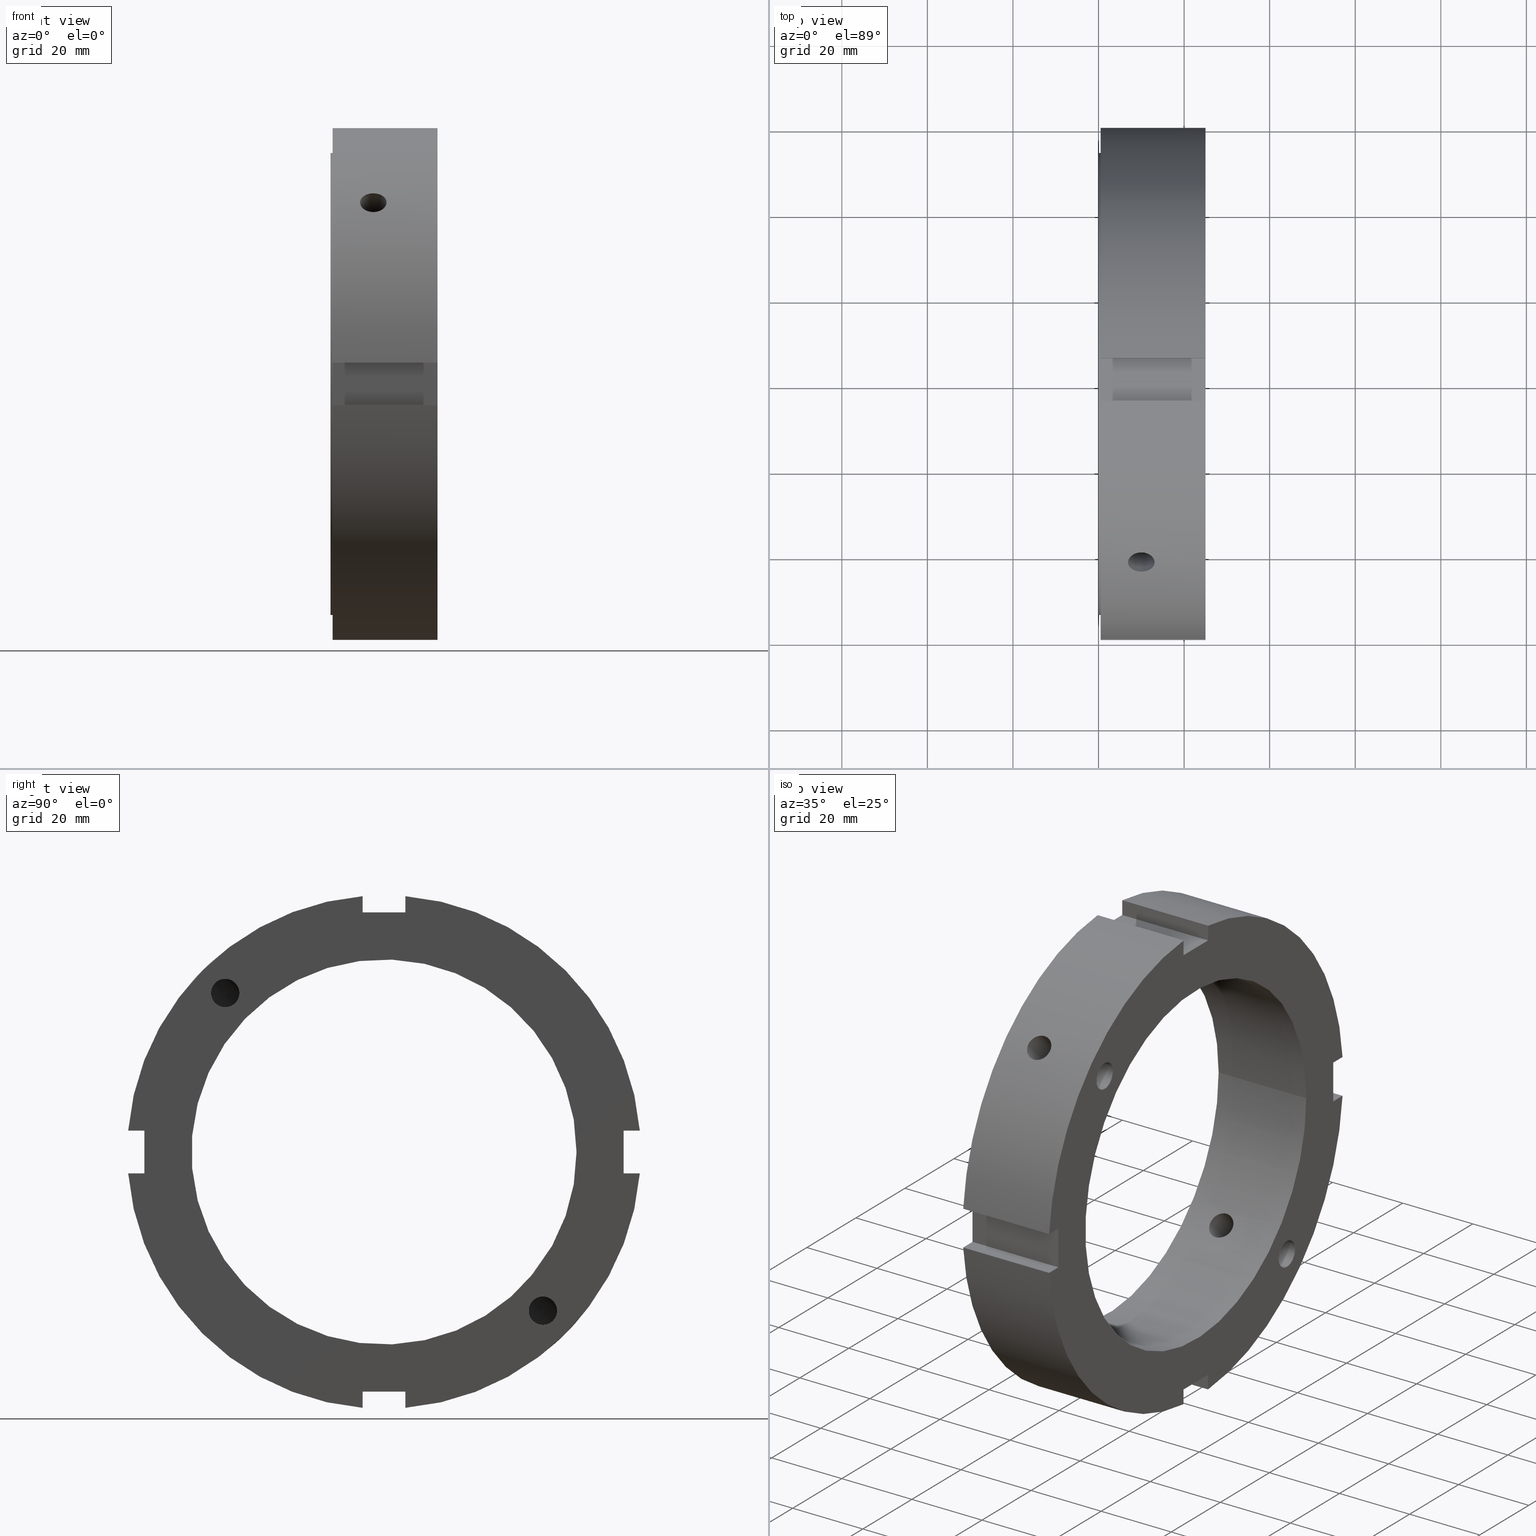
[diagram: canonical four-view strip — front | top / right | iso, engineering-drawing reading convention]
A machine part, canonical four-view strip (front | top / right | iso — engineering-drawing reading convention). The complete STEP part file that produces these views, byte-faithful:
ISO-10303-21;
HEADER;
/****************************************************************
 * Generated by software with PDElib inside                    *
 * PDElib Version v51a, created Wed 11/30/2011                  *
 * ITI Transcendata (http://www.transcendata.com/)              *
 ****************************************************************/
FILE_DESCRIPTION((''),'2;1');
FILE_NAME('C:\\Users\\sugidesign\\Documents\\Fukuda\\3Ddata\\ZMVtype\\FKD ZMV90.stp','2014-02-22T14:43:34',('sugidesign'),(''),'Autodesk Inventor LT ','Autodesk Inventor LT ','');
FILE_SCHEMA(('CONFIG_CONTROL_DESIGN'));
ENDSEC;
DATA;
#5=APPLICATION_CONTEXT('configuration controlled 3D designs of mechanical parts and assemblies');
#6=APPLICATION_PROTOCOL_DEFINITION('International Standard','ap203_configuration_controlled_3d_design_of_mechanical_parts_and_assemblies_mim_lf',2004,#5);
#7=PRODUCT_CONTEXT('',#5,'mechanical');
#8=PRODUCT('FKD ZMV90','FKD ZMV90',$,(#7));
#9=PRODUCT_RELATED_PRODUCT_CATEGORY('part',$,(#8));
#10=PRODUCT_DEFINITION_FORMATION('',$,#8);
#11=PRODUCT_DEFINITION_CONTEXT('part definition',#5,'design');
#12=PRODUCT_DEFINITION('',$,#10,#11);
#18=(NAMED_UNIT(*)PLANE_ANGLE_UNIT()SI_UNIT($,.RADIAN.));
#19=DIMENSIONAL_EXPONENTS(0.0,0.0,0.0,0.0,0.0,0.0,0.0);
#20=PLANE_ANGLE_MEASURE_WITH_UNIT(PLANE_ANGLE_MEASURE(0.0174532925),#18);
#24=(CONVERSION_BASED_UNIT('DEGREE',#20)NAMED_UNIT(#19)PLANE_ANGLE_UNIT());
#28=(NAMED_UNIT(*)SI_UNIT($,.STERADIAN.)SOLID_ANGLE_UNIT());
#32=(LENGTH_UNIT()NAMED_UNIT(*)SI_UNIT(.MILLI.,.METRE.));
#34=UNCERTAINTY_MEASURE_WITH_UNIT(LENGTH_MEASURE(0.01),#32,'DISTANCE_ACCURACY_VALUE','');
#36=(GEOMETRIC_REPRESENTATION_CONTEXT(3)GLOBAL_UNCERTAINTY_ASSIGNED_CONTEXT((#34))GLOBAL_UNIT_ASSIGNED_CONTEXT((#24,#28,#32))REPRESENTATION_CONTEXT('None','None'));
#37=AXIS2_PLACEMENT_3D('',#38,#39,#40);
#38=CARTESIAN_POINT('',(0.0,0.0,0.0));
#39=DIRECTION('',(0.0,0.0,1.0));
#40=DIRECTION('',(1.0,0.0,0.0));
#41=SHAPE_REPRESENTATION('',(#37),#36);
#42=PRODUCT_DEFINITION_SHAPE('','',#12);
#43=SHAPE_DEFINITION_REPRESENTATION(#42,#41);
#49=(NAMED_UNIT(*)PLANE_ANGLE_UNIT()SI_UNIT($,.RADIAN.));
#50=DIMENSIONAL_EXPONENTS(0.0,0.0,0.0,0.0,0.0,0.0,0.0);
#51=PLANE_ANGLE_MEASURE_WITH_UNIT(PLANE_ANGLE_MEASURE(0.0174532925),#49);
#55=(CONVERSION_BASED_UNIT('DEGREE',#51)NAMED_UNIT(#50)PLANE_ANGLE_UNIT());
#59=(NAMED_UNIT(*)SI_UNIT($,.STERADIAN.)SOLID_ANGLE_UNIT());
#63=(LENGTH_UNIT()NAMED_UNIT(*)SI_UNIT(.MILLI.,.METRE.));
#65=UNCERTAINTY_MEASURE_WITH_UNIT(LENGTH_MEASURE(0.000001),#63,'DISTANCE_ACCURACY_VALUE','');
#67=(GEOMETRIC_REPRESENTATION_CONTEXT(3)GLOBAL_UNCERTAINTY_ASSIGNED_CONTEXT((#65))GLOBAL_UNIT_ASSIGNED_CONTEXT((#55,#59,#63))REPRESENTATION_CONTEXT('','3D'));
#68=CARTESIAN_POINT('',(17.499999999999982,-37.123106012293739,37.123106012293754));
#69=DIRECTION('',(-1.0,0.0,0.0));
#70=DIRECTION('',(0.0,-1.0,0.0));
#71=AXIS2_PLACEMENT_3D('',#68,#69,#70);
#72=CYLINDRICAL_SURFACE('',#71,3.3235);
#73=CARTESIAN_POINT('',(24.999999999999982,-40.446606012293742,37.123106012293754));
#74=VERTEX_POINT('',#73);
#75=CARTESIAN_POINT('',(24.999999999999982,-37.123106012293739,37.123106012293754));
#76=DIRECTION('',(-1.0,0.0,0.0));
#77=DIRECTION('',(0.0,-1.0,0.0));
#78=AXIS2_PLACEMENT_3D('',#75,#76,#77);
#79=CIRCLE('',#78,3.3235);
#80=EDGE_CURVE('',#74,#74,#79,.T.);
#81=ORIENTED_EDGE('',*,*,#80,.F.);
#82=EDGE_LOOP('',(#81));
#83=FACE_OUTER_BOUND('',#82,.T.);
#84=CARTESIAN_POINT('',(9.999999999999981,-38.46789083303635,34.083828789679757));
#85=VERTEX_POINT('',#84);
#86=CARTESIAN_POINT('',(9.999999999999984,-34.083828789679721,38.467890833036329));
#87=VERTEX_POINT('',#86);
#88=CARTESIAN_POINT('',(9.999999999999981,-38.467890833036272,34.083828789679714));
#89=CARTESIAN_POINT('',(10.233569825289619,-38.467890833036272,34.083828789679714));
#90=CARTESIAN_POINT('',(10.440966302638062,-38.403240249614917,34.054340559708194));
#91=CARTESIAN_POINT('',(10.836840674384995,-38.212575574254139,33.981590727696293));
#92=CARTESIAN_POINT('',(11.024806661991317,-38.08546861608469,33.938412782978276));
#93=CARTESIAN_POINT('',(11.572531601479493,-37.646818461163349,33.827295975198737));
#94=CARTESIAN_POINT('',(11.911351554404819,-37.279283432583121,33.78234272328536));
#95=CARTESIAN_POINT('',(12.44492654453818,-36.570924775862693,33.828573054154624));
#96=CARTESIAN_POINT('',(12.681418961330898,-36.185012415331428,33.908704345434309));
#97=CARTESIAN_POINT('',(12.927436105658053,-35.622337393371652,34.150727740187506));
#98=CARTESIAN_POINT('',(12.991937069006072,-35.437148063779908,34.251194147775372));
#99=CARTESIAN_POINT('',(13.078237878842891,-35.08689505867865,34.487925389480502));
#100=CARTESIAN_POINT('',(13.099999999999987,-34.921846665682033,34.624226584358489));
#101=CARTESIAN_POINT('',(13.099999999999987,-34.624226584358482,34.92184666568204));
#102=CARTESIAN_POINT('',(13.078237878842899,-34.487925389480502,35.08689505867865));
#103=CARTESIAN_POINT('',(12.991937069006081,-34.251194147775365,35.437148063779908));
#104=CARTESIAN_POINT('',(12.92743610565806,-34.150727740187499,35.622337393371659));
#105=CARTESIAN_POINT('',(12.681418961330911,-33.908704345434295,36.185012415331435));
#106=CARTESIAN_POINT('',(12.44492654453818,-33.82857305415461,36.570924775862686));
#107=CARTESIAN_POINT('',(11.911351554404824,-33.782342723285346,37.279283432583121));
#108=CARTESIAN_POINT('',(11.572531601479481,-33.827295975198723,37.646818461163342));
#109=CARTESIAN_POINT('',(11.024806661991297,-33.938412782978261,38.085468616084682));
#110=CARTESIAN_POINT('',(10.836840674384991,-33.981590727696272,38.21257557425416));
#111=CARTESIAN_POINT('',(10.440966302638062,-34.05434055970818,38.403240249614939));
#112=CARTESIAN_POINT('',(10.233569825289624,-34.08382878967975,38.467890833036385));
#113=CARTESIAN_POINT('',(9.999999999999984,-34.08382878967975,38.467890833036385));
#114=B_SPLINE_CURVE_WITH_KNOTS('',3,(#88,#89,#90,#91,#92,#93,#94,#95,#96,#97,#98,#99,#100,#101,#102,#103,#104,#105,#106,#107,#108,#109,#110,#111,#112,#113),.UNSPECIFIED.,.F.,.U.,(4,2,2,2,2,2,2,2,2,2,2,2,4),(0.0,0.070070947586891,0.140141895173783,0.280283790347566,0.406553296980271,0.469688050296623,0.532822803612976,0.595957556929328,0.65909231024568,0.785361816878385,0.925503712052168,0.99557465963906,1.065645607225952),.UNSPECIFIED.);
#115=EDGE_CURVE('',#85,#87,#114,.T.);
#116=ORIENTED_EDGE('',*,*,#115,.F.);
#117=CARTESIAN_POINT('',(9.999999999999984,-40.162383234907736,35.778321191551143));
#118=VERTEX_POINT('',#117);
#119=CARTESIAN_POINT('',(9.999999999999982,-37.123106012293739,37.123106012293754));
#120=DIRECTION('',(-1.0,0.0,0.0));
#121=DIRECTION('',(0.0,-1.0,0.0));
#122=AXIS2_PLACEMENT_3D('',#119,#120,#121);
#123=CIRCLE('',#122,3.3235);
#124=EDGE_CURVE('',#85,#118,#123,.T.);
#125=ORIENTED_EDGE('',*,*,#124,.T.);
#126=CARTESIAN_POINT('',(9.999999999999984,-35.778321191551157,40.162383234907757));
#127=VERTEX_POINT('',#126);
#128=CARTESIAN_POINT('',(9.999999999999984,-35.778321191551065,40.162383234907722));
#129=CARTESIAN_POINT('',(10.233569825289624,-35.778321191551065,40.162383234907722));
#130=CARTESIAN_POINT('',(10.440966302638071,-35.842971774972547,40.191871464879313));
#131=CARTESIAN_POINT('',(10.836840674385005,-36.03363645033334,40.264621296891221));
#132=CARTESIAN_POINT('',(11.024806661991317,-36.160743408502796,40.307799241609231));
#133=CARTESIAN_POINT('',(11.572531601479501,-36.599393563424144,40.418916049388763));
#134=CARTESIAN_POINT('',(11.911351554404824,-36.966928592004372,40.46386930130214));
#135=CARTESIAN_POINT('',(12.444926544538184,-37.6752872487248,40.417638970432883));
#136=CARTESIAN_POINT('',(12.681418961330913,-38.061199609256064,40.337507679153191));
#137=CARTESIAN_POINT('',(12.927436105658064,-38.623874631215848,40.095484284399994));
#138=CARTESIAN_POINT('',(12.991937069006079,-38.809063960807585,39.995017876812121));
#139=CARTESIAN_POINT('',(13.0782378788429,-39.159316965908836,39.758286635106984));
#140=CARTESIAN_POINT('',(13.099999999999987,-39.32436535890546,39.621985440229025));
#141=CARTESIAN_POINT('',(13.099999999999987,-39.621985440229011,39.32436535890546));
#142=CARTESIAN_POINT('',(13.078237878842899,-39.758286635106984,39.159316965908836));
#143=CARTESIAN_POINT('',(12.991937069006077,-39.995017876812121,38.809063960807578));
#144=CARTESIAN_POINT('',(12.927436105658055,-40.09548428439998,38.623874631215834));
#145=CARTESIAN_POINT('',(12.681418961330898,-40.337507679153177,38.061199609256057));
#146=CARTESIAN_POINT('',(12.44492654453818,-40.417638970432861,37.6752872487248));
#147=CARTESIAN_POINT('',(11.911351554404817,-40.463869301302125,36.966928592004365));
#148=CARTESIAN_POINT('',(11.572531601479472,-40.418916049388756,36.599393563424151));
#149=CARTESIAN_POINT('',(11.024806661991292,-40.307799241609217,36.160743408502817));
#150=CARTESIAN_POINT('',(10.836840674384987,-40.264621296891193,36.03363645033334));
#151=CARTESIAN_POINT('',(10.440966302638055,-40.191871464879291,35.842971774972561));
#152=CARTESIAN_POINT('',(10.233569825289619,-40.162383234907779,35.778321191551214));
#153=CARTESIAN_POINT('',(9.999999999999984,-40.162383234907779,35.778321191551214));
#154=B_SPLINE_CURVE_WITH_KNOTS('',3,(#128,#129,#130,#131,#132,#133,#134,#135,#136,#137,#138,#139,#140,#141,#142,#143,#144,#145,#146,#147,#148,#149,#150,#151,#152,#153),.UNSPECIFIED.,.F.,.U.,(4,2,2,2,2,2,2,2,2,2,2,2,4),(-1.065645607225954,-0.995574659639062,-0.925503712052171,-0.785361816878387,-0.659092310245682,-0.595957556929329,-0.532822803612977,-0.469688050296624,-0.406553296980272,-0.280283790347567,-0.140141895173783,-0.070070947586891,0.0),.UNSPECIFIED.);
#155=EDGE_CURVE('',#127,#118,#154,.T.);
#156=ORIENTED_EDGE('',*,*,#155,.F.);
#157=CARTESIAN_POINT('',(9.999999999999982,-37.123106012293739,37.123106012293754));
#158=DIRECTION('',(-1.0,0.0,0.0));
#159=DIRECTION('',(0.0,-1.0,0.0));
#160=AXIS2_PLACEMENT_3D('',#157,#158,#159);
#161=CIRCLE('',#160,3.3235);
#162=EDGE_CURVE('',#127,#87,#161,.T.);
#163=ORIENTED_EDGE('',*,*,#162,.T.);
#164=EDGE_LOOP('',(#116,#125,#156,#163));
#165=FACE_BOUND('',#164,.T.);
#166=ADVANCED_FACE('',(#83,#165),#72,.F.);
#167=CARTESIAN_POINT('',(9.001519866330934,-37.123106012293739,37.123106012293754));
#168=DIRECTION('',(1.0,0.0,0.0));
#169=DIRECTION('',(0.0,-1.0,0.0));
#170=AXIS2_PLACEMENT_3D('',#167,#168,#169);
#171=CONICAL_SURFACE('',#170,1.66175,59.000000000000007);
#172=CARTESIAN_POINT('',(9.999999999999963,-40.162383234907715,35.778321191551164));
#173=CARTESIAN_POINT('',(9.911968600355367,-39.875027464027724,35.490965420671174));
#174=CARTESIAN_POINT('',(9.863911961712322,-39.584869575164142,35.205033951345584));
#175=CARTESIAN_POINT('',(9.863911961712322,-39.313023824203015,34.933188200384457));
#176=CARTESIAN_POINT('',(9.863911961712322,-39.036932353980831,34.657096730162273));
#177=CARTESIAN_POINT('',(9.912387462444656,-38.753879336792927,34.369817293436384));
#178=CARTESIAN_POINT('',(9.999999999999961,-38.467890833036321,34.083828789679778));
#179=B_SPLINE_CURVE_WITH_KNOTS('',3,(#172,#173,#174,#175,#176,#177,#178),.UNSPECIFIED.,.F.,.U.,(4,3,4),(-0.115334384364818,0.0,0.117135690493121),.UNSPECIFIED.);
#180=EDGE_CURVE('',#118,#85,#179,.T.);
#181=ORIENTED_EDGE('',*,*,#180,.F.);
#182=ORIENTED_EDGE('',*,*,#124,.F.);
#183=EDGE_LOOP('',(#181,#182));
#184=FACE_OUTER_BOUND('',#183,.T.);
#185=ADVANCED_FACE('',(#184),#171,.F.);
#186=CARTESIAN_POINT('',(9.001519866330934,-37.123106012293739,37.123106012293754));
#187=DIRECTION('',(1.0,0.0,0.0));
#188=DIRECTION('',(0.0,-1.0,0.0));
#189=AXIS2_PLACEMENT_3D('',#186,#187,#188);
#190=CONICAL_SURFACE('',#189,1.66175,59.000000000000007);
#191=CARTESIAN_POINT('',(9.999999999999993,-34.083828789679707,38.467890833036343));
#192=CARTESIAN_POINT('',(9.912387462444684,-34.36981729343632,38.753879336792956));
#193=CARTESIAN_POINT('',(9.863911961712319,-34.657096730162266,39.036932353980838));
#194=CARTESIAN_POINT('',(9.863911961712317,-35.205033951345598,39.584869575164163));
#195=CARTESIAN_POINT('',(9.911968600355397,-35.490965420671145,39.875027464027781));
#196=CARTESIAN_POINT('',(9.999999999999993,-35.778321191551143,40.162383234907779));
#197=B_SPLINE_CURVE_WITH_KNOTS('',3,(#191,#192,#193,#194,#195,#196),.UNSPECIFIED.,.F.,.U.,(4,2,4),(1.864951332313778,1.982087022806903,2.097421407171725),.UNSPECIFIED.);
#198=EDGE_CURVE('',#87,#127,#197,.T.);
#199=ORIENTED_EDGE('',*,*,#198,.F.);
#200=ORIENTED_EDGE('',*,*,#162,.F.);
#201=EDGE_LOOP('',(#199,#200));
#202=FACE_OUTER_BOUND('',#201,.T.);
#203=ADVANCED_FACE('',(#202),#190,.F.);
#204=CARTESIAN_POINT('',(9.999999999999986,-120.8821740373658,120.88217403736586));
#205=DIRECTION('',(0.0,-0.707106781186547,0.707106781186548));
#206=DIRECTION('',(1.0,0.0,0.0));
#207=AXIS2_PLACEMENT_3D('',#204,#205,#206);
#208=CYLINDRICAL_SURFACE('',#207,3.100000000000001);
#209=CARTESIAN_POINT('',(9.999999999999986,-44.561772583316362,40.177710539959776));
#210=VERTEX_POINT('',#209);
#211=CARTESIAN_POINT('',(9.999999999999986,-44.561772583316348,40.17771053995979));
#212=CARTESIAN_POINT('',(9.610682685129081,-44.561772583316348,40.17771053995979));
#213=CARTESIAN_POINT('',(9.195462866064688,-44.509705000042104,40.235696132911222));
#214=CARTESIAN_POINT('',(8.431707439552355,-44.296676004376856,40.470107207976078));
#215=CARTESIAN_POINT('',(8.083165956447614,-44.135563328041471,40.646376029251741));
#216=CARTESIAN_POINT('',(7.532772066487651,-43.760604083340283,41.049791288379225));
#217=CARTESIAN_POINT('',(7.294207271991367,-43.52172167297504,41.303821013147875));
#218=CARTESIAN_POINT('',(6.977819320932714,-42.99234590730083,41.854558665123037));
#219=CARTESIAN_POINT('',(6.899999999999986,-42.701695718257362,42.151118024128351));
#220=CARTESIAN_POINT('',(6.899999999999986,-42.151118024128309,42.701695718257398));
#221=CARTESIAN_POINT('',(6.977819320932709,-41.854558665123001,42.992345907300859));
#222=CARTESIAN_POINT('',(7.294207271991361,-41.303821013147839,43.521721672975069));
#223=CARTESIAN_POINT('',(7.53277206648765,-41.049791288379176,43.760604083340311));
#224=CARTESIAN_POINT('',(8.083165956447612,-40.646376029251684,44.135563328041492));
#225=CARTESIAN_POINT('',(8.431707439552355,-40.470107207976028,44.296676004376884));
#226=CARTESIAN_POINT('',(9.195462866064688,-40.235696132911173,44.509705000042146));
#227=CARTESIAN_POINT('',(9.610682685129081,-40.177710539959733,44.561772583316383));
#228=CARTESIAN_POINT('',(10.38931731487089,-40.177710539959733,44.561772583316369));
#229=CARTESIAN_POINT('',(10.804537133935279,-40.235696132911173,44.509705000042146));
#230=CARTESIAN_POINT('',(11.568292560447615,-40.470107207976028,44.296676004376899));
#231=CARTESIAN_POINT('',(11.916834043552363,-40.646376029251684,44.135563328041485));
#232=CARTESIAN_POINT('',(12.467227933512326,-41.049791288379176,43.760604083340311));
#233=CARTESIAN_POINT('',(12.70579272800861,-41.303821013147839,43.521721672975069));
#234=CARTESIAN_POINT('',(13.022180679067263,-41.854558665123001,42.992345907300859));
#235=CARTESIAN_POINT('',(13.099999999999987,-42.151118024128309,42.701695718257398));
#236=CARTESIAN_POINT('',(13.099999999999987,-42.701695718257355,42.151118024128344));
#237=CARTESIAN_POINT('',(13.022180679067262,-42.99234590730083,41.854558665123037));
#238=CARTESIAN_POINT('',(12.705792728008605,-43.52172167297504,41.303821013147875));
#239=CARTESIAN_POINT('',(12.467227933512323,-43.760604083340283,41.049791288379218));
#240=CARTESIAN_POINT('',(11.916834043552358,-44.135563328041471,40.646376029251741));
#241=CARTESIAN_POINT('',(11.56829256044762,-44.296676004376856,40.470107207976078));
#242=CARTESIAN_POINT('',(10.804537133935288,-44.509705000042104,40.235696132911222));
#243=CARTESIAN_POINT('',(10.389317314870892,-44.561772583316348,40.17771053995979));
#244=CARTESIAN_POINT('',(9.999999999999986,-44.561772583316348,40.17771053995979));
#245=B_SPLINE_CURVE_WITH_KNOTS('',3,(#211,#212,#213,#214,#215,#216,#217,#218,#219,#220,#221,#222,#223,#224,#225,#226,#227,#228,#229,#230,#231,#232,#233,#234,#235,#236,#237,#238,#239,#240,#241,#242,#243,#244),.UNSPECIFIED.,.T.,.U.,(4,2,2,2,2,2,2,2,2,2,2,2,2,2,2,2,4),(0.0,0.116795194461271,0.233590388922543,0.350385555249154,0.467180721575766,0.583975887902377,0.700771054228988,0.81756624869026,0.934361443151531,1.051156637612803,1.167951832074075,1.284746998400686,1.401542164727297,1.518337331053908,1.63513249738052,1.751927691841791,1.868722886303063),.UNSPECIFIED.);
#246=EDGE_CURVE('',#210,#210,#245,.T.);
#247=ORIENTED_EDGE('',*,*,#246,.F.);
#248=EDGE_LOOP('',(#247));
#249=FACE_OUTER_BOUND('',#248,.T.);
#250=ORIENTED_EDGE('',*,*,#180,.T.);
#251=ORIENTED_EDGE('',*,*,#115,.T.);
#252=ORIENTED_EDGE('',*,*,#198,.T.);
#253=ORIENTED_EDGE('',*,*,#155,.T.);
#254=EDGE_LOOP('',(#250,#251,#252,#253));
#255=FACE_BOUND('',#254,.T.);
#256=CARTESIAN_POINT('',(9.999999999999986,-33.936243092542483,29.55218104918589));
#257=VERTEX_POINT('',#256);
#258=CARTESIAN_POINT('',(9.999999999999986,-33.936243092542469,29.552181049185918));
#259=CARTESIAN_POINT('',(10.389375374306017,-33.936243092542469,29.552181049185918));
#260=CARTESIAN_POINT('',(10.804620113304184,-33.885151272223595,29.611174462560314));
#261=CARTESIAN_POINT('',(11.56835949746325,-33.675687375665234,29.84917435237627));
#262=CARTESIAN_POINT('',(11.916864625129852,-33.517113893175889,30.027969843267819));
#263=CARTESIAN_POINT('',(12.467197208327647,-33.146948421533608,30.436092174599679));
#264=CARTESIAN_POINT('',(12.705753258439609,-32.910618542862132,30.692623106402745));
#265=CARTESIAN_POINT('',(13.022158063760665,-32.384817058190038,31.246912649597615));
#266=CARTESIAN_POINT('',(13.099999999999987,-32.09513491096962,31.54447539581966));
#267=CARTESIAN_POINT('',(13.099999999999987,-31.544475395819621,32.095134910969662));
#268=CARTESIAN_POINT('',(13.022158063760664,-31.246912649597572,32.38481705819008));
#269=CARTESIAN_POINT('',(12.705753258439598,-30.692623106402696,32.910618542862174));
#270=CARTESIAN_POINT('',(12.467197208327647,-30.436092174599626,33.146948421533644));
#271=CARTESIAN_POINT('',(11.916864625129852,-30.027969843267766,33.517113893175924));
#272=CARTESIAN_POINT('',(11.56835949746325,-29.849174352376224,33.675687375665277));
#273=CARTESIAN_POINT('',(10.804620113304185,-29.611174462560264,33.885151272223638));
#274=CARTESIAN_POINT('',(10.389375374306017,-29.552181049185869,33.936243092542512));
#275=CARTESIAN_POINT('',(9.610624625693959,-29.552181049185869,33.936243092542512));
#276=CARTESIAN_POINT('',(9.195379886695786,-29.611174462560264,33.885151272223638));
#277=CARTESIAN_POINT('',(8.431640502536723,-29.849174352376224,33.675687375665277));
#278=CARTESIAN_POINT('',(8.083135374870121,-30.027969843267766,33.517113893175924));
#279=CARTESIAN_POINT('',(7.532802791672326,-30.436092174599626,33.146948421533644));
#280=CARTESIAN_POINT('',(7.294246741560376,-30.692623106402699,32.910618542862181));
#281=CARTESIAN_POINT('',(6.977841936239311,-31.246912649597576,32.384817058190094));
#282=CARTESIAN_POINT('',(6.899999999999986,-31.544475395819621,32.095134910969662));
#283=CARTESIAN_POINT('',(6.899999999999986,-32.09513491096962,31.54447539581966));
#284=CARTESIAN_POINT('',(6.977841936239307,-32.384817058190052,31.246912649597611));
#285=CARTESIAN_POINT('',(7.29424674156037,-32.910618542862132,30.692623106402745));
#286=CARTESIAN_POINT('',(7.532802791672326,-33.146948421533608,30.436092174599679));
#287=CARTESIAN_POINT('',(8.083135374870121,-33.517113893175889,30.027969843267819));
#288=CARTESIAN_POINT('',(8.431640502536721,-33.675687375665234,29.849174352376266));
#289=CARTESIAN_POINT('',(9.195379886695784,-33.885151272223595,29.61117446256031));
#290=CARTESIAN_POINT('',(9.610624625693959,-33.936243092542469,29.552181049185918));
#291=CARTESIAN_POINT('',(9.999999999999986,-33.936243092542469,29.552181049185918));
#292=B_SPLINE_CURVE_WITH_KNOTS('',3,(#258,#259,#260,#261,#262,#263,#264,#265,#266,#267,#268,#269,#270,#271,#272,#273,#274,#275,#276,#277,#278,#279,#280,#281,#282,#283,#284,#285,#286,#287,#288,#289,#290,#291),.UNSPECIFIED.,.T.,.U.,(4,2,2,2,2,2,2,2,2,2,2,2,2,2,2,2,4),(0.0,0.116812612291809,0.233625224583617,0.350437747769856,0.467250270956094,0.584062794142332,0.700875317328571,0.817687929620379,0.934500541912188,1.051313154203996,1.168125766495805,1.284938289682044,1.401750812868282,1.518563336054521,1.635375859240759,1.752188471532568,1.869001083824376),.UNSPECIFIED.);
#293=EDGE_CURVE('',#257,#257,#292,.T.);
#294=ORIENTED_EDGE('',*,*,#293,.F.);
#295=EDGE_LOOP('',(#294));
#296=FACE_BOUND('',#295,.T.);
#297=ADVANCED_FACE('',(#249,#255,#296),#208,.F.);
#298=CARTESIAN_POINT('',(9.001519866330934,37.123106012293746,-37.123106012293746));
#299=DIRECTION('',(1.0,0.0,0.0));
#300=DIRECTION('',(0.0,0.0,-1.0));
#301=AXIS2_PLACEMENT_3D('',#298,#299,#300);
#302=CONICAL_SURFACE('',#301,1.66175,59.000000000000007);
#303=CARTESIAN_POINT('',(9.999999999999981,34.083828789679742,-38.467890833036364));
#304=VERTEX_POINT('',#303);
#305=CARTESIAN_POINT('',(9.999999999999984,35.778321191551129,-40.162383234907743));
#306=VERTEX_POINT('',#305);
#307=CARTESIAN_POINT('',(9.999999999999977,34.08382878967975,-38.46789083303635));
#308=CARTESIAN_POINT('',(9.912387462388336,34.369817293620244,-38.753879336976844));
#309=CARTESIAN_POINT('',(9.863911961712324,34.657096729689002,-39.036932353507574));
#310=CARTESIAN_POINT('',(9.863911961712322,34.93318820038445,-39.313023824203022));
#311=CARTESIAN_POINT('',(9.863911961712322,35.205033951345577,-39.584869575164149));
#312=CARTESIAN_POINT('',(9.911968600355385,35.490965420671145,-39.875027464027752));
#313=CARTESIAN_POINT('',(9.999999999999977,35.778321191551129,-40.162383234907743));
#314=B_SPLINE_CURVE_WITH_KNOTS('',3,(#307,#308,#309,#310,#311,#312,#313),.UNSPECIFIED.,.F.,.U.,(4,3,4),(-0.11713569069391,0.0,0.115334384364818),.UNSPECIFIED.);
#315=EDGE_CURVE('',#304,#306,#314,.T.);
#316=ORIENTED_EDGE('',*,*,#315,.F.);
#317=CARTESIAN_POINT('',(9.999999999999982,37.123106012293746,-37.123106012293746));
#318=DIRECTION('',(1.0,0.0,0.0));
#319=DIRECTION('',(0.0,0.0,-1.0));
#320=AXIS2_PLACEMENT_3D('',#317,#318,#319);
#321=CIRCLE('',#320,3.3235);
#322=EDGE_CURVE('',#304,#306,#321,.T.);
#323=ORIENTED_EDGE('',*,*,#322,.T.);
#324=EDGE_LOOP('',(#316,#323));
#325=FACE_OUTER_BOUND('',#324,.T.);
#326=ADVANCED_FACE('',(#325),#302,.F.);
#327=CARTESIAN_POINT('',(9.001519866330934,37.123106012293746,-37.123106012293746));
#328=DIRECTION('',(1.0,0.0,0.0));
#329=DIRECTION('',(0.0,0.0,-1.0));
#330=AXIS2_PLACEMENT_3D('',#327,#328,#329);
#331=CONICAL_SURFACE('',#330,1.66175,59.000000000000007);
#332=CARTESIAN_POINT('',(9.999999999999984,40.16238323490775,-35.778321191551164));
#333=VERTEX_POINT('',#332);
#334=CARTESIAN_POINT('',(9.999999999999984,38.467890833036321,-34.083828789679728));
#335=VERTEX_POINT('',#334);
#336=CARTESIAN_POINT('',(9.999999999999984,40.162383234907757,-35.778321191551164));
#337=CARTESIAN_POINT('',(9.911968600355387,39.87502746402776,-35.490965420671166));
#338=CARTESIAN_POINT('',(9.863911961712317,39.584869575164156,-35.205033951345605));
#339=CARTESIAN_POINT('',(9.863911961712319,39.036932353980831,-34.657096730162273));
#340=CARTESIAN_POINT('',(9.912387462444677,38.753879336792934,-34.369817293436341));
#341=CARTESIAN_POINT('',(9.999999999999986,38.467890833036321,-34.083828789679728));
#342=B_SPLINE_CURVE_WITH_KNOTS('',3,(#336,#337,#338,#339,#340,#341),.UNSPECIFIED.,.F.,.U.,(4,2,4),(1.843478900417886,1.958813284782707,2.075948975275832),.UNSPECIFIED.);
#343=EDGE_CURVE('',#333,#335,#342,.T.);
#344=ORIENTED_EDGE('',*,*,#343,.F.);
#345=CARTESIAN_POINT('',(9.999999999999982,37.123106012293746,-37.123106012293746));
#346=DIRECTION('',(1.0,0.0,0.0));
#347=DIRECTION('',(0.0,0.0,-1.0));
#348=AXIS2_PLACEMENT_3D('',#345,#346,#347);
#349=CIRCLE('',#348,3.3235);
#350=EDGE_CURVE('',#333,#335,#349,.T.);
#351=ORIENTED_EDGE('',*,*,#350,.T.);
#352=EDGE_LOOP('',(#344,#351));
#353=FACE_OUTER_BOUND('',#352,.T.);
#354=ADVANCED_FACE('',(#353),#331,.F.);
#355=CARTESIAN_POINT('',(17.499999999999982,37.123106012293746,-37.123106012293746));
#356=DIRECTION('',(1.0,0.0,0.0));
#357=DIRECTION('',(0.0,0.0,-1.0));
#358=AXIS2_PLACEMENT_3D('',#355,#356,#357);
#359=CYLINDRICAL_SURFACE('',#358,3.3235);
#360=CARTESIAN_POINT('',(9.999999999999986,35.778321191551157,-40.162383234907757));
#361=CARTESIAN_POINT('',(10.233569825289624,35.778321191551157,-40.162383234907757));
#362=CARTESIAN_POINT('',(10.440966302638055,35.842971774972561,-40.191871464879313));
#363=CARTESIAN_POINT('',(10.836840674384987,36.03363645033334,-40.264621296891221));
#364=CARTESIAN_POINT('',(11.024806661991294,36.16074340850281,-40.307799241609231));
#365=CARTESIAN_POINT('',(11.572531601479472,36.599393563424144,-40.418916049388763));
#366=CARTESIAN_POINT('',(11.911351554404817,36.966928592004358,-40.46386930130214));
#367=CARTESIAN_POINT('',(12.44492654453818,37.675287248724786,-40.417638970432876));
#368=CARTESIAN_POINT('',(12.681418961330898,38.06119960925605,-40.337507679153184));
#369=CARTESIAN_POINT('',(12.927436105658055,38.623874631215827,-40.095484284399987));
#370=CARTESIAN_POINT('',(12.991937069006077,38.80906396080757,-39.995017876812128));
#371=CARTESIAN_POINT('',(13.078237878842899,39.159316965908822,-39.758286635106991));
#372=CARTESIAN_POINT('',(13.099999999999987,39.324365358905453,-39.621985440229025));
#373=CARTESIAN_POINT('',(13.099999999999987,39.621985440229011,-39.324365358905467));
#374=CARTESIAN_POINT('',(13.0782378788429,39.758286635106977,-39.159316965908843));
#375=CARTESIAN_POINT('',(12.991937069006079,39.995017876812106,-38.809063960807592));
#376=CARTESIAN_POINT('',(12.927436105658064,40.095484284399987,-38.623874631215855));
#377=CARTESIAN_POINT('',(12.681418961330913,40.337507679153184,-38.061199609256072));
#378=CARTESIAN_POINT('',(12.444926544538184,40.417638970432876,-37.675287248724807));
#379=CARTESIAN_POINT('',(11.911351554404824,40.463869301302125,-36.966928592004379));
#380=CARTESIAN_POINT('',(11.572531601479493,40.418916049388756,-36.599393563424144));
#381=CARTESIAN_POINT('',(11.024806661991315,40.307799241609217,-36.16074340850281));
#382=CARTESIAN_POINT('',(10.836840674385005,40.264621296891214,-36.033636450333347));
#383=CARTESIAN_POINT('',(10.440966302638071,40.191871464879306,-35.842971774972561));
#384=CARTESIAN_POINT('',(10.233569825289626,40.162383234907757,-35.778321191551171));
#385=CARTESIAN_POINT('',(9.999999999999986,40.162383234907757,-35.778321191551171));
#386=B_SPLINE_CURVE_WITH_KNOTS('',3,(#360,#361,#362,#363,#364,#365,#366,#367,#368,#369,#370,#371,#372,#373,#374,#375,#376,#377,#378,#379,#380,#381,#382,#383,#384,#385),.UNSPECIFIED.,.F.,.U.,(4,2,2,2,2,2,2,2,2,2,2,2,4),(0.0,0.070070947586892,0.140141895173783,0.280283790347567,0.406553296980272,0.469688050296624,0.532822803612977,0.595957556929329,0.659092310245682,0.785361816878387,0.92550371205217,0.995574659639062,1.065645607225954),.UNSPECIFIED.);
#387=EDGE_CURVE('',#306,#333,#386,.T.);
#388=ORIENTED_EDGE('',*,*,#387,.F.);
#389=ORIENTED_EDGE('',*,*,#322,.F.);
#390=CARTESIAN_POINT('',(9.999999999999988,38.467890833036329,-34.083828789679735));
#391=CARTESIAN_POINT('',(10.233569825289628,38.467890833036329,-34.083828789679735));
#392=CARTESIAN_POINT('',(10.440966302638071,38.403240249614939,-34.054340559708187));
#393=CARTESIAN_POINT('',(10.836840674385,38.212575574254146,-33.981590727696286));
#394=CARTESIAN_POINT('',(11.024806661991299,38.085468616084668,-33.938412782978261));
#395=CARTESIAN_POINT('',(11.572531601479481,37.646818461163328,-33.827295975198723));
#396=CARTESIAN_POINT('',(11.911351554404826,37.279283432583121,-33.782342723285353));
#397=CARTESIAN_POINT('',(12.44492654453818,36.570924775862679,-33.828573054154617));
#398=CARTESIAN_POINT('',(12.681418961330911,36.185012415331428,-33.908704345434309));
#399=CARTESIAN_POINT('',(12.92743610565806,35.622337393371652,-34.150727740187506));
#400=CARTESIAN_POINT('',(12.991937069006081,35.437148063779901,-34.251194147775379));
#401=CARTESIAN_POINT('',(13.078237878842899,35.086895058678643,-34.487925389480509));
#402=CARTESIAN_POINT('',(13.099999999999987,34.921846665682025,-34.624226584358489));
#403=CARTESIAN_POINT('',(13.099999999999987,34.624226584358475,-34.92184666568204));
#404=CARTESIAN_POINT('',(13.078237878842893,34.487925389480495,-35.086895058678664));
#405=CARTESIAN_POINT('',(12.991937069006072,34.251194147775365,-35.437148063779922));
#406=CARTESIAN_POINT('',(12.927436105658053,34.150727740187499,-35.622337393371659));
#407=CARTESIAN_POINT('',(12.681418961330898,33.908704345434295,-36.185012415331435));
#408=CARTESIAN_POINT('',(12.44492654453818,33.828573054154617,-36.5709247758627));
#409=CARTESIAN_POINT('',(11.911351554404819,33.782342723285353,-37.279283432583128));
#410=CARTESIAN_POINT('',(11.572531601479493,33.82729597519873,-37.646818461163356));
#411=CARTESIAN_POINT('',(11.024806661991317,33.938412782978268,-38.085468616084697));
#412=CARTESIAN_POINT('',(10.836840674384998,33.981590727696286,-38.212575574254146));
#413=CARTESIAN_POINT('',(10.440966302638063,34.054340559708187,-38.403240249614932));
#414=CARTESIAN_POINT('',(10.233569825289624,34.083828789679721,-38.467890833036321));
#415=CARTESIAN_POINT('',(9.999999999999986,34.083828789679721,-38.467890833036321));
#416=B_SPLINE_CURVE_WITH_KNOTS('',3,(#390,#391,#392,#393,#394,#395,#396,#397,#398,#399,#400,#401,#402,#403,#404,#405,#406,#407,#408,#409,#410,#411,#412,#413,#414,#415),.UNSPECIFIED.,.F.,.U.,(4,2,2,2,2,2,2,2,2,2,2,2,4),(-1.065645607225952,-0.99557465963906,-0.925503712052168,-0.785361816878385,-0.65909231024568,-0.595957556929328,-0.532822803612976,-0.469688050296623,-0.406553296980271,-0.280283790347565,-0.140141895173783,-0.070070947586891,0.0),.UNSPECIFIED.);
#417=EDGE_CURVE('',#335,#304,#416,.T.);
#418=ORIENTED_EDGE('',*,*,#417,.F.);
#419=ORIENTED_EDGE('',*,*,#350,.F.);
#420=EDGE_LOOP('',(#388,#389,#418,#419));
#421=FACE_OUTER_BOUND('',#420,.T.);
#422=CARTESIAN_POINT('',(24.999999999999982,37.123106012293746,-40.446606012293749));
#423=VERTEX_POINT('',#422);
#424=CARTESIAN_POINT('',(24.999999999999982,37.123106012293746,-37.123106012293746));
#425=DIRECTION('',(-1.0,0.0,0.0));
#426=DIRECTION('',(0.0,0.0,-1.0));
#427=AXIS2_PLACEMENT_3D('',#424,#425,#426);
#428=CIRCLE('',#427,3.3235);
#429=EDGE_CURVE('',#423,#423,#428,.T.);
#430=ORIENTED_EDGE('',*,*,#429,.F.);
#431=EDGE_LOOP('',(#430));
#432=FACE_BOUND('',#431,.T.);
#433=ADVANCED_FACE('',(#421,#432),#359,.F.);
#434=CARTESIAN_POINT('',(9.999999999999986,120.88217403736581,-120.88217403736584));
#435=DIRECTION('',(0.0,-0.707106781186547,0.707106781186548));
#436=DIRECTION('',(1.0,0.0,0.0));
#437=AXIS2_PLACEMENT_3D('',#434,#435,#436);
#438=CYLINDRICAL_SURFACE('',#437,3.100000000000001);
#439=CARTESIAN_POINT('',(9.999999999999986,40.177710539959762,-44.561772583316369));
#440=VERTEX_POINT('',#439);
#441=CARTESIAN_POINT('',(9.999999999999986,40.177710539959762,-44.561772583316362));
#442=CARTESIAN_POINT('',(10.389317314870894,40.177710539959762,-44.561772583316362));
#443=CARTESIAN_POINT('',(10.804537133935288,40.235696132911201,-44.509705000042132));
#444=CARTESIAN_POINT('',(11.568292560447617,40.470107207976056,-44.296676004376877));
#445=CARTESIAN_POINT('',(11.916834043552363,40.646376029251726,-44.135563328041485));
#446=CARTESIAN_POINT('',(12.467227933512323,41.049791288379211,-43.760604083340304));
#447=CARTESIAN_POINT('',(12.705792728008609,41.303821013147868,-43.521721672975048));
#448=CARTESIAN_POINT('',(13.022180679067262,41.854558665123029,-42.992345907300837));
#449=CARTESIAN_POINT('',(13.099999999999987,42.151118024128323,-42.701695718257383));
#450=CARTESIAN_POINT('',(13.099999999999987,42.701695718257383,-42.151118024128337));
#451=CARTESIAN_POINT('',(13.022180679067262,42.992345907300837,-41.854558665123022));
#452=CARTESIAN_POINT('',(12.705792728008605,43.521721672975048,-41.303821013147861));
#453=CARTESIAN_POINT('',(12.467227933512323,43.760604083340297,-41.049791288379197));
#454=CARTESIAN_POINT('',(11.916834043552358,44.135563328041471,-40.646376029251712));
#455=CARTESIAN_POINT('',(11.568292560447617,44.296676004376877,-40.470107207976056));
#456=CARTESIAN_POINT('',(10.804537133935284,44.509705000042118,-40.235696132911201));
#457=CARTESIAN_POINT('',(10.389317314870892,44.561772583316355,-40.177710539959762));
#458=CARTESIAN_POINT('',(9.610682685129081,44.561772583316355,-40.177710539959762));
#459=CARTESIAN_POINT('',(9.195462866064688,44.509705000042118,-40.235696132911201));
#460=CARTESIAN_POINT('',(8.431707439552357,44.296676004376877,-40.470107207976056));
#461=CARTESIAN_POINT('',(8.083165956447614,44.135563328041471,-40.646376029251712));
#462=CARTESIAN_POINT('',(7.53277206648765,43.760604083340297,-41.049791288379197));
#463=CARTESIAN_POINT('',(7.294207271991371,43.521721672975062,-41.303821013147861));
#464=CARTESIAN_POINT('',(6.977819320932717,42.992345907300844,-41.854558665123022));
#465=CARTESIAN_POINT('',(6.899999999999986,42.701695718257383,-42.151118024128337));
#466=CARTESIAN_POINT('',(6.899999999999986,42.151118024128323,-42.701695718257383));
#467=CARTESIAN_POINT('',(6.977819320932711,41.854558665123029,-42.992345907300837));
#468=CARTESIAN_POINT('',(7.294207271991363,41.303821013147868,-43.521721672975048));
#469=CARTESIAN_POINT('',(7.532772066487651,41.049791288379211,-43.760604083340304));
#470=CARTESIAN_POINT('',(8.083165956447612,40.646376029251726,-44.135563328041485));
#471=CARTESIAN_POINT('',(8.431707439552355,40.470107207976056,-44.296676004376863));
#472=CARTESIAN_POINT('',(9.195462866064686,40.235696132911201,-44.509705000042132));
#473=CARTESIAN_POINT('',(9.610682685129081,40.177710539959762,-44.561772583316362));
#474=CARTESIAN_POINT('',(9.999999999999986,40.177710539959762,-44.561772583316362));
#475=B_SPLINE_CURVE_WITH_KNOTS('',3,(#441,#442,#443,#444,#445,#446,#447,#448,#449,#450,#451,#452,#453,#454,#455,#456,#457,#458,#459,#460,#461,#462,#463,#464,#465,#466,#467,#468,#469,#470,#471,#472,#473,#474),.UNSPECIFIED.,.T.,.U.,(4,2,2,2,2,2,2,2,2,2,2,2,2,2,2,2,4),(0.0,0.116795194461272,0.233590388922543,0.350385555249154,0.467180721575765,0.583975887902377,0.700771054228988,0.81756624869026,0.934361443151531,1.051156637612802,1.167951832074074,1.284746998400685,1.401542164727297,1.518337331053908,1.635132497380519,1.75192769184179,1.868722886303062),.UNSPECIFIED.);
#476=EDGE_CURVE('',#440,#440,#475,.T.);
#477=ORIENTED_EDGE('',*,*,#476,.F.);
#478=EDGE_LOOP('',(#477));
#479=FACE_OUTER_BOUND('',#478,.T.);
#480=ORIENTED_EDGE('',*,*,#315,.T.);
#481=ORIENTED_EDGE('',*,*,#387,.T.);
#482=ORIENTED_EDGE('',*,*,#343,.T.);
#483=ORIENTED_EDGE('',*,*,#417,.T.);
#484=EDGE_LOOP('',(#480,#481,#482,#483));
#485=FACE_BOUND('',#484,.T.);
#486=CARTESIAN_POINT('',(9.999999999999986,29.552181049185879,-33.936243092542483));
#487=VERTEX_POINT('',#486);
#488=CARTESIAN_POINT('',(9.999999999999988,29.552181049185894,-33.93624309254249));
#489=CARTESIAN_POINT('',(9.610624625693959,29.552181049185894,-33.93624309254249));
#490=CARTESIAN_POINT('',(9.19537988669579,29.611174462560296,-33.885151272223617));
#491=CARTESIAN_POINT('',(8.431640502536723,29.849174352376252,-33.675687375665255));
#492=CARTESIAN_POINT('',(8.083135374870121,30.02796984326779,-33.517113893175917));
#493=CARTESIAN_POINT('',(7.532802791672326,30.436092174599647,-33.146948421533629));
#494=CARTESIAN_POINT('',(7.294246741560374,30.692623106402714,-32.910618542862153));
#495=CARTESIAN_POINT('',(6.97784193623931,31.24691264959759,-32.384817058190066));
#496=CARTESIAN_POINT('',(6.899999999999986,31.544475395819632,-32.095134910969641));
#497=CARTESIAN_POINT('',(6.899999999999986,32.095134910969641,-31.544475395819642));
#498=CARTESIAN_POINT('',(6.977841936239306,32.384817058190066,-31.246912649597594));
#499=CARTESIAN_POINT('',(7.294246741560372,32.910618542862153,-30.692623106402728));
#500=CARTESIAN_POINT('',(7.532802791672326,33.146948421533615,-30.436092174599651));
#501=CARTESIAN_POINT('',(8.083135374870121,33.517113893175903,-30.02796984326779));
#502=CARTESIAN_POINT('',(8.431640502536725,33.675687375665255,-29.849174352376252));
#503=CARTESIAN_POINT('',(9.19537988669579,33.885151272223617,-29.611174462560296));
#504=CARTESIAN_POINT('',(9.610624625693959,33.93624309254249,-29.552181049185894));
#505=CARTESIAN_POINT('',(10.389375374306017,33.93624309254249,-29.552181049185894));
#506=CARTESIAN_POINT('',(10.804620113304184,33.885151272223617,-29.611174462560296));
#507=CARTESIAN_POINT('',(11.568359497463248,33.675687375665255,-29.849174352376252));
#508=CARTESIAN_POINT('',(11.91686462512985,33.517113893175903,-30.02796984326779));
#509=CARTESIAN_POINT('',(12.467197208327645,33.146948421533615,-30.436092174599651));
#510=CARTESIAN_POINT('',(12.705753258439598,32.910618542862153,-30.692623106402724));
#511=CARTESIAN_POINT('',(13.022158063760665,32.384817058190066,-31.246912649597594));
#512=CARTESIAN_POINT('',(13.099999999999987,32.095134910969641,-31.544475395819642));
#513=CARTESIAN_POINT('',(13.099999999999987,31.544475395819639,-32.095134910969641));
#514=CARTESIAN_POINT('',(13.02215806376066,31.246912649597583,-32.384817058190073));
#515=CARTESIAN_POINT('',(12.705753258439598,30.692623106402721,-32.91061854286216));
#516=CARTESIAN_POINT('',(12.467197208327647,30.436092174599651,-33.146948421533637));
#517=CARTESIAN_POINT('',(11.916864625129852,30.02796984326779,-33.517113893175917));
#518=CARTESIAN_POINT('',(11.568359497463245,29.849174352376252,-33.675687375665255));
#519=CARTESIAN_POINT('',(10.804620113304182,29.611174462560296,-33.885151272223617));
#520=CARTESIAN_POINT('',(10.389375374306017,29.552181049185894,-33.93624309254249));
#521=CARTESIAN_POINT('',(9.999999999999986,29.552181049185894,-33.93624309254249));
#522=B_SPLINE_CURVE_WITH_KNOTS('',3,(#488,#489,#490,#491,#492,#493,#494,#495,#496,#497,#498,#499,#500,#501,#502,#503,#504,#505,#506,#507,#508,#509,#510,#511,#512,#513,#514,#515,#516,#517,#518,#519,#520,#521),.UNSPECIFIED.,.T.,.U.,(4,2,2,2,2,2,2,2,2,2,2,2,2,2,2,2,4),(0.0,0.116812612291809,0.233625224583617,0.350437747769856,0.467250270956094,0.584062794142332,0.700875317328571,0.817687929620379,0.934500541912188,1.051313154203996,1.168125766495805,1.284938289682043,1.401750812868281,1.51856333605452,1.635375859240759,1.752188471532567,1.869001083824376),.UNSPECIFIED.);
#523=EDGE_CURVE('',#487,#487,#522,.T.);
#524=ORIENTED_EDGE('',*,*,#523,.F.);
#525=EDGE_LOOP('',(#524));
#526=FACE_BOUND('',#525,.T.);
#527=ADVANCED_FACE('',(#479,#485,#526),#438,.F.);
#528=CARTESIAN_POINT('',(24.999999999999982,-5.000000000000008,-56.0));
#529=DIRECTION('',(0.0,-1.0,0.0));
#530=DIRECTION('',(-1.0,0.0,0.0));
#531=AXIS2_PLACEMENT_3D('',#528,#529,#530);
#532=PLANE('',#531);
#533=CARTESIAN_POINT('',(0.499999999999985,-5.000000000000008,-56.0));
#534=VERTEX_POINT('',#533);
#535=CARTESIAN_POINT('',(0.499999999999985,-5.000000000000007,-59.791303715506992));
#536=VERTEX_POINT('',#535);
#537=CARTESIAN_POINT('',(0.499999999999985,-5.00000000000001,-56.0));
#538=DIRECTION('',(0.0,0.0,-1.0));
#539=VECTOR('',#538,3.791303715506992);
#540=LINE('',#537,#539);
#541=EDGE_CURVE('',#534,#536,#540,.T.);
#542=ORIENTED_EDGE('',*,*,#541,.F.);
#543=CARTESIAN_POINT('',(24.999999999999982,-5.000000000000008,-56.0));
#544=VERTEX_POINT('',#543);
#545=CARTESIAN_POINT('',(24.999999999999982,-5.000000000000008,-56.0));
#546=DIRECTION('',(-1.0,0.0,0.0));
#547=VECTOR('',#546,24.499999999999996);
#548=LINE('',#545,#547);
#549=EDGE_CURVE('',#544,#534,#548,.T.);
#550=ORIENTED_EDGE('',*,*,#549,.F.);
#551=CARTESIAN_POINT('',(24.999999999999982,-5.000000000000007,-59.791303715506992));
#552=VERTEX_POINT('',#551);
#553=CARTESIAN_POINT('',(24.999999999999982,-5.000000000000011,-59.791303715506992));
#554=DIRECTION('',(0.0,0.0,1.0));
#555=VECTOR('',#554,3.791303715506992);
#556=LINE('',#553,#555);
#557=EDGE_CURVE('',#552,#544,#556,.T.);
#558=ORIENTED_EDGE('',*,*,#557,.F.);
#559=CARTESIAN_POINT('',(0.499999999999986,-5.000000000000008,-59.791303715506992));
#560=DIRECTION('',(1.0,0.0,0.0));
#561=VECTOR('',#560,24.499999999999996);
#562=LINE('',#559,#561);
#563=EDGE_CURVE('',#536,#552,#562,.T.);
#564=ORIENTED_EDGE('',*,*,#563,.F.);
#565=EDGE_LOOP('',(#542,#550,#558,#564));
#566=FACE_OUTER_BOUND('',#565,.T.);
#567=ADVANCED_FACE('',(#566),#532,.F.);
#568=CARTESIAN_POINT('',(24.999999999999982,4.999999999999986,-60.0));
#569=DIRECTION('',(0.0,1.0,0.0));
#570=DIRECTION('',(1.0,0.0,0.0));
#571=AXIS2_PLACEMENT_3D('',#568,#569,#570);
#572=PLANE('',#571);
#573=CARTESIAN_POINT('',(0.499999999999985,4.999999999999985,-59.791303715506992));
#574=VERTEX_POINT('',#573);
#575=CARTESIAN_POINT('',(0.499999999999985,4.999999999999988,-56.0));
#576=VERTEX_POINT('',#575);
#577=CARTESIAN_POINT('',(0.499999999999985,4.999999999999981,-59.791303715506992));
#578=DIRECTION('',(0.0,0.0,1.0));
#579=VECTOR('',#578,3.791303715506992);
#580=LINE('',#577,#579);
#581=EDGE_CURVE('',#574,#576,#580,.T.);
#582=ORIENTED_EDGE('',*,*,#581,.F.);
#583=CARTESIAN_POINT('',(24.999999999999982,4.999999999999985,-59.791303715506992));
#584=VERTEX_POINT('',#583);
#585=CARTESIAN_POINT('',(24.999999999999982,4.999999999999985,-59.791303715506992));
#586=DIRECTION('',(-1.0,0.0,0.0));
#587=VECTOR('',#586,24.499999999999996);
#588=LINE('',#585,#587);
#589=EDGE_CURVE('',#584,#574,#588,.T.);
#590=ORIENTED_EDGE('',*,*,#589,.F.);
#591=CARTESIAN_POINT('',(24.999999999999982,4.999999999999988,-56.0));
#592=VERTEX_POINT('',#591);
#593=CARTESIAN_POINT('',(24.999999999999982,4.999999999999983,-56.0));
#594=DIRECTION('',(0.0,0.0,-1.0));
#595=VECTOR('',#594,3.791303715506992);
#596=LINE('',#593,#595);
#597=EDGE_CURVE('',#592,#584,#596,.T.);
#598=ORIENTED_EDGE('',*,*,#597,.F.);
#599=CARTESIAN_POINT('',(24.999999999999982,4.999999999999988,-56.0));
#600=DIRECTION('',(-1.0,0.0,0.0));
#601=VECTOR('',#600,24.499999999999996);
#602=LINE('',#599,#601);
#603=EDGE_CURVE('',#592,#576,#602,.T.);
#604=ORIENTED_EDGE('',*,*,#603,.T.);
#605=EDGE_LOOP('',(#582,#590,#598,#604));
#606=FACE_OUTER_BOUND('',#605,.T.);
#607=ADVANCED_FACE('',(#606),#572,.F.);
#608=CARTESIAN_POINT('',(24.999999999999982,4.999999999999988,-56.0));
#609=DIRECTION('',(0.0,0.0,1.0));
#610=DIRECTION('',(0.0,-1.0,0.0));
#611=AXIS2_PLACEMENT_3D('',#608,#609,#610);
#612=PLANE('',#611);
#613=CARTESIAN_POINT('',(0.499999999999985,4.999999999999986,-55.999999999999993));
#614=DIRECTION('',(0.0,-1.0,0.0));
#615=VECTOR('',#614,9.999999999999993);
#616=LINE('',#613,#615);
#617=EDGE_CURVE('',#576,#534,#616,.T.);
#618=ORIENTED_EDGE('',*,*,#617,.F.);
#619=ORIENTED_EDGE('',*,*,#603,.F.);
#620=CARTESIAN_POINT('',(24.999999999999982,-5.000000000000007,-55.999999999999993));
#621=DIRECTION('',(0.0,1.0,0.0));
#622=VECTOR('',#621,9.999999999999996);
#623=LINE('',#620,#622);
#624=EDGE_CURVE('',#544,#592,#623,.T.);
#625=ORIENTED_EDGE('',*,*,#624,.F.);
#626=ORIENTED_EDGE('',*,*,#549,.T.);
#627=EDGE_LOOP('',(#618,#619,#625,#626));
#628=FACE_OUTER_BOUND('',#627,.T.);
#629=ADVANCED_FACE('',(#628),#612,.F.);
#630=CARTESIAN_POINT('',(24.999999999999982,-56.0,5.000000000000004));
#631=DIRECTION('',(0.0,0.0,1.0));
#632=DIRECTION('',(-1.0,0.0,0.0));
#633=AXIS2_PLACEMENT_3D('',#630,#631,#632);
#634=PLANE('',#633);
#635=CARTESIAN_POINT('',(0.499999999999985,-56.0,5.000000000000004));
#636=VERTEX_POINT('',#635);
#637=CARTESIAN_POINT('',(0.499999999999985,-59.791303715506992,5.000000000000004));
#638=VERTEX_POINT('',#637);
#639=CARTESIAN_POINT('',(0.499999999999985,-55.999999999999993,5.000000000000004));
#640=DIRECTION('',(0.0,-1.0,0.0));
#641=VECTOR('',#640,3.791303715506999);
#642=LINE('',#639,#641);
#643=EDGE_CURVE('',#636,#638,#642,.T.);
#644=ORIENTED_EDGE('',*,*,#643,.F.);
#645=CARTESIAN_POINT('',(24.999999999999982,-56.0,5.000000000000004));
#646=VERTEX_POINT('',#645);
#647=CARTESIAN_POINT('',(24.999999999999982,-56.0,5.000000000000004));
#648=DIRECTION('',(-1.0,0.0,0.0));
#649=VECTOR('',#648,24.499999999999996);
#650=LINE('',#647,#649);
#651=EDGE_CURVE('',#646,#636,#650,.T.);
#652=ORIENTED_EDGE('',*,*,#651,.F.);
#653=CARTESIAN_POINT('',(24.999999999999982,-59.791303715506992,5.000000000000004));
#654=VERTEX_POINT('',#653);
#655=CARTESIAN_POINT('',(24.999999999999982,-59.791303715506992,5.000000000000004));
#656=DIRECTION('',(0.0,1.0,0.0));
#657=VECTOR('',#656,3.791303715506992);
#658=LINE('',#655,#657);
#659=EDGE_CURVE('',#654,#646,#658,.T.);
#660=ORIENTED_EDGE('',*,*,#659,.F.);
#661=CARTESIAN_POINT('',(0.499999999999986,-59.791303715506992,5.000000000000004));
#662=DIRECTION('',(1.0,0.0,0.0));
#663=VECTOR('',#662,24.499999999999996);
#664=LINE('',#661,#663);
#665=EDGE_CURVE('',#638,#654,#664,.T.);
#666=ORIENTED_EDGE('',*,*,#665,.F.);
#667=EDGE_LOOP('',(#644,#652,#660,#666));
#668=FACE_OUTER_BOUND('',#667,.T.);
#669=ADVANCED_FACE('',(#668),#634,.F.);
#670=CARTESIAN_POINT('',(24.999999999999982,-60.0,-4.999999999999989));
#671=DIRECTION('',(0.0,0.0,-1.0));
#672=DIRECTION('',(1.0,0.0,0.0));
#673=AXIS2_PLACEMENT_3D('',#670,#671,#672);
#674=PLANE('',#673);
#675=CARTESIAN_POINT('',(0.499999999999985,-59.791303715506992,-4.999999999999989));
#676=VERTEX_POINT('',#675);
#677=CARTESIAN_POINT('',(0.499999999999985,-56.0,-4.99999999999999));
#678=VERTEX_POINT('',#677);
#679=CARTESIAN_POINT('',(0.499999999999985,-59.791303715506984,-4.999999999999989));
#680=DIRECTION('',(0.0,1.0,0.0));
#681=VECTOR('',#680,3.791303715506992);
#682=LINE('',#679,#681);
#683=EDGE_CURVE('',#676,#678,#682,.T.);
#684=ORIENTED_EDGE('',*,*,#683,.F.);
#685=CARTESIAN_POINT('',(24.999999999999982,-59.791303715506992,-4.999999999999989));
#686=VERTEX_POINT('',#685);
#687=CARTESIAN_POINT('',(24.999999999999982,-59.791303715506992,-4.999999999999989));
#688=DIRECTION('',(-1.0,0.0,0.0));
#689=VECTOR('',#688,24.499999999999996);
#690=LINE('',#687,#689);
#691=EDGE_CURVE('',#686,#676,#690,.T.);
#692=ORIENTED_EDGE('',*,*,#691,.F.);
#693=CARTESIAN_POINT('',(24.999999999999982,-56.0,-4.99999999999999));
#694=VERTEX_POINT('',#693);
#695=CARTESIAN_POINT('',(24.999999999999982,-56.0,-4.99999999999999));
#696=DIRECTION('',(0.0,-1.0,0.0));
#697=VECTOR('',#696,3.791303715506992);
#698=LINE('',#695,#697);
#699=EDGE_CURVE('',#694,#686,#698,.T.);
#700=ORIENTED_EDGE('',*,*,#699,.F.);
#701=CARTESIAN_POINT('',(24.999999999999982,-56.0,-4.99999999999999));
#702=DIRECTION('',(-1.0,0.0,0.0));
#703=VECTOR('',#702,24.499999999999996);
#704=LINE('',#701,#703);
#705=EDGE_CURVE('',#694,#678,#704,.T.);
#706=ORIENTED_EDGE('',*,*,#705,.T.);
#707=EDGE_LOOP('',(#684,#692,#700,#706));
#708=FACE_OUTER_BOUND('',#707,.T.);
#709=ADVANCED_FACE('',(#708),#674,.F.);
#710=CARTESIAN_POINT('',(24.999999999999982,-56.0,-4.99999999999999));
#711=DIRECTION('',(0.0,1.0,0.0));
#712=DIRECTION('',(0.0,0.0,1.0));
#713=AXIS2_PLACEMENT_3D('',#710,#711,#712);
#714=PLANE('',#713);
#715=CARTESIAN_POINT('',(0.499999999999985,-56.0,-4.999999999999991));
#716=DIRECTION('',(0.0,0.0,1.0));
#717=VECTOR('',#716,9.999999999999996);
#718=LINE('',#715,#717);
#719=EDGE_CURVE('',#678,#636,#718,.T.);
#720=ORIENTED_EDGE('',*,*,#719,.F.);
#721=ORIENTED_EDGE('',*,*,#705,.F.);
#722=CARTESIAN_POINT('',(24.999999999999982,-56.0,5.000000000000004));
#723=DIRECTION('',(0.0,0.0,-1.0));
#724=VECTOR('',#723,9.999999999999996);
#725=LINE('',#722,#724);
#726=EDGE_CURVE('',#646,#694,#725,.T.);
#727=ORIENTED_EDGE('',*,*,#726,.F.);
#728=ORIENTED_EDGE('',*,*,#651,.T.);
#729=EDGE_LOOP('',(#720,#721,#727,#728));
#730=FACE_OUTER_BOUND('',#729,.T.);
#731=ADVANCED_FACE('',(#730),#714,.F.);
#732=CARTESIAN_POINT('',(24.999999999999982,5.000000000000001,56.0));
#733=DIRECTION('',(0.0,1.0,0.0));
#734=DIRECTION('',(-1.0,0.0,0.0));
#735=AXIS2_PLACEMENT_3D('',#732,#733,#734);
#736=PLANE('',#735);
#737=CARTESIAN_POINT('',(0.499999999999985,5.000000000000001,56.0));
#738=VERTEX_POINT('',#737);
#739=CARTESIAN_POINT('',(0.499999999999985,5.0,59.791303715506992));
#740=VERTEX_POINT('',#739);
#741=CARTESIAN_POINT('',(0.499999999999985,4.999999999999998,56.0));
#742=DIRECTION('',(0.0,0.0,1.0));
#743=VECTOR('',#742,3.791303715506992);
#744=LINE('',#741,#743);
#745=EDGE_CURVE('',#738,#740,#744,.T.);
#746=ORIENTED_EDGE('',*,*,#745,.F.);
#747=CARTESIAN_POINT('',(24.999999999999982,5.000000000000001,56.0));
#748=VERTEX_POINT('',#747);
#749=CARTESIAN_POINT('',(24.999999999999982,5.000000000000001,56.0));
#750=DIRECTION('',(-1.0,0.0,0.0));
#751=VECTOR('',#750,24.499999999999996);
#752=LINE('',#749,#751);
#753=EDGE_CURVE('',#748,#738,#752,.T.);
#754=ORIENTED_EDGE('',*,*,#753,.F.);
#755=CARTESIAN_POINT('',(24.999999999999982,5.0,59.791303715506992));
#756=VERTEX_POINT('',#755);
#757=CARTESIAN_POINT('',(24.999999999999982,4.999999999999997,59.791303715506992));
#758=DIRECTION('',(0.0,0.0,-1.0));
#759=VECTOR('',#758,3.791303715506992);
#760=LINE('',#757,#759);
#761=EDGE_CURVE('',#756,#748,#760,.T.);
#762=ORIENTED_EDGE('',*,*,#761,.F.);
#763=CARTESIAN_POINT('',(0.499999999999986,5.000000000000001,59.791303715506992));
#764=DIRECTION('',(1.0,0.0,0.0));
#765=VECTOR('',#764,24.499999999999996);
#766=LINE('',#763,#765);
#767=EDGE_CURVE('',#740,#756,#766,.T.);
#768=ORIENTED_EDGE('',*,*,#767,.F.);
#769=EDGE_LOOP('',(#746,#754,#762,#768));
#770=FACE_OUTER_BOUND('',#769,.T.);
#771=ADVANCED_FACE('',(#770),#736,.F.);
#772=CARTESIAN_POINT('',(24.999999999999982,-4.999999999999993,60.0));
#773=DIRECTION('',(0.0,-1.0,0.0));
#774=DIRECTION('',(1.0,0.0,0.0));
#775=AXIS2_PLACEMENT_3D('',#772,#773,#774);
#776=PLANE('',#775);
#777=CARTESIAN_POINT('',(0.499999999999985,-4.999999999999992,59.791303715506992));
#778=VERTEX_POINT('',#777);
#779=CARTESIAN_POINT('',(0.499999999999985,-4.999999999999994,56.0));
#780=VERTEX_POINT('',#779);
#781=CARTESIAN_POINT('',(0.499999999999985,-4.999999999999989,59.791303715506992));
#782=DIRECTION('',(0.0,0.0,-1.0));
#783=VECTOR('',#782,3.791303715506992);
#784=LINE('',#781,#783);
#785=EDGE_CURVE('',#778,#780,#784,.T.);
#786=ORIENTED_EDGE('',*,*,#785,.F.);
#787=CARTESIAN_POINT('',(24.999999999999982,-4.999999999999992,59.791303715506992));
#788=VERTEX_POINT('',#787);
#789=CARTESIAN_POINT('',(24.999999999999982,-4.999999999999992,59.791303715506992));
#790=DIRECTION('',(-1.0,0.0,0.0));
#791=VECTOR('',#790,24.499999999999996);
#792=LINE('',#789,#791);
#793=EDGE_CURVE('',#788,#778,#792,.T.);
#794=ORIENTED_EDGE('',*,*,#793,.F.);
#795=CARTESIAN_POINT('',(24.999999999999982,-4.999999999999994,56.0));
#796=VERTEX_POINT('',#795);
#797=CARTESIAN_POINT('',(24.999999999999982,-4.99999999999999,56.0));
#798=DIRECTION('',(0.0,0.0,1.0));
#799=VECTOR('',#798,3.791303715506992);
#800=LINE('',#797,#799);
#801=EDGE_CURVE('',#796,#788,#800,.T.);
#802=ORIENTED_EDGE('',*,*,#801,.F.);
#803=CARTESIAN_POINT('',(24.999999999999982,-4.999999999999994,56.0));
#804=DIRECTION('',(-1.0,0.0,0.0));
#805=VECTOR('',#804,24.499999999999996);
#806=LINE('',#803,#805);
#807=EDGE_CURVE('',#796,#780,#806,.T.);
#808=ORIENTED_EDGE('',*,*,#807,.T.);
#809=EDGE_LOOP('',(#786,#794,#802,#808));
#810=FACE_OUTER_BOUND('',#809,.T.);
#811=ADVANCED_FACE('',(#810),#776,.F.);
#812=CARTESIAN_POINT('',(24.999999999999982,-4.999999999999994,56.0));
#813=DIRECTION('',(0.0,0.0,-1.0));
#814=DIRECTION('',(0.0,1.0,0.0));
#815=AXIS2_PLACEMENT_3D('',#812,#813,#814);
#816=PLANE('',#815);
#817=CARTESIAN_POINT('',(0.499999999999985,-4.999999999999993,56.0));
#818=DIRECTION('',(0.0,1.0,0.0));
#819=VECTOR('',#818,9.999999999999993);
#820=LINE('',#817,#819);
#821=EDGE_CURVE('',#780,#738,#820,.T.);
#822=ORIENTED_EDGE('',*,*,#821,.F.);
#823=ORIENTED_EDGE('',*,*,#807,.F.);
#824=CARTESIAN_POINT('',(24.999999999999982,5.0,56.0));
#825=DIRECTION('',(0.0,-1.0,0.0));
#826=VECTOR('',#825,9.999999999999996);
#827=LINE('',#824,#826);
#828=EDGE_CURVE('',#748,#796,#827,.T.);
#829=ORIENTED_EDGE('',*,*,#828,.F.);
#830=ORIENTED_EDGE('',*,*,#753,.T.);
#831=EDGE_LOOP('',(#822,#823,#829,#830));
#832=FACE_OUTER_BOUND('',#831,.T.);
#833=ADVANCED_FACE('',(#832),#816,.F.);
#834=CARTESIAN_POINT('',(12.749999999999984,0.0,0.0));
#835=DIRECTION('',(1.0,0.0,0.0));
#836=DIRECTION('',(0.0,1.0,0.0));
#837=AXIS2_PLACEMENT_3D('',#834,#835,#836);
#838=CYLINDRICAL_SURFACE('',#837,60.0);
#839=ORIENTED_EDGE('',*,*,#767,.T.);
#840=CARTESIAN_POINT('',(24.999999999999982,59.791303715506992,4.999999999999996));
#841=VERTEX_POINT('',#840);
#842=CARTESIAN_POINT('',(24.999999999999982,0.0,0.0));
#843=DIRECTION('',(1.0,0.0,0.0));
#844=DIRECTION('',(0.0,1.0,0.0));
#845=AXIS2_PLACEMENT_3D('',#842,#843,#844);
#846=CIRCLE('',#845,60.0);
#847=EDGE_CURVE('',#841,#756,#846,.T.);
#848=ORIENTED_EDGE('',*,*,#847,.F.);
#849=CARTESIAN_POINT('',(0.499999999999985,59.791303715506992,4.999999999999996));
#850=VERTEX_POINT('',#849);
#851=CARTESIAN_POINT('',(24.999999999999982,59.791303715506992,4.999999999999996));
#852=DIRECTION('',(-1.0,0.0,0.0));
#853=VECTOR('',#852,24.499999999999996);
#854=LINE('',#851,#853);
#855=EDGE_CURVE('',#841,#850,#854,.T.);
#856=ORIENTED_EDGE('',*,*,#855,.T.);
#857=CARTESIAN_POINT('',(0.499999999999985,0.0,0.0));
#858=DIRECTION('',(1.0,0.0,0.0));
#859=DIRECTION('',(0.0,1.0,0.0));
#860=AXIS2_PLACEMENT_3D('',#857,#858,#859);
#861=CIRCLE('',#860,60.0);
#862=EDGE_CURVE('',#850,#740,#861,.T.);
#863=ORIENTED_EDGE('',*,*,#862,.T.);
#864=EDGE_LOOP('',(#839,#848,#856,#863));
#865=FACE_OUTER_BOUND('',#864,.T.);
#866=ADVANCED_FACE('',(#865),#838,.T.);
#867=CARTESIAN_POINT('',(12.749999999999984,0.0,0.0));
#868=DIRECTION('',(1.0,0.0,0.0));
#869=DIRECTION('',(0.0,1.0,0.0));
#870=AXIS2_PLACEMENT_3D('',#867,#868,#869);
#871=CYLINDRICAL_SURFACE('',#870,60.0);
#872=ORIENTED_EDGE('',*,*,#665,.T.);
#873=CARTESIAN_POINT('',(24.999999999999982,0.0,0.0));
#874=DIRECTION('',(1.0,0.0,0.0));
#875=DIRECTION('',(0.0,1.0,0.0));
#876=AXIS2_PLACEMENT_3D('',#873,#874,#875);
#877=CIRCLE('',#876,60.0);
#878=EDGE_CURVE('',#788,#654,#877,.T.);
#879=ORIENTED_EDGE('',*,*,#878,.F.);
#880=ORIENTED_EDGE('',*,*,#793,.T.);
#881=CARTESIAN_POINT('',(0.499999999999985,0.0,0.0));
#882=DIRECTION('',(1.0,0.0,0.0));
#883=DIRECTION('',(0.0,1.0,0.0));
#884=AXIS2_PLACEMENT_3D('',#881,#882,#883);
#885=CIRCLE('',#884,60.0);
#886=EDGE_CURVE('',#778,#638,#885,.T.);
#887=ORIENTED_EDGE('',*,*,#886,.T.);
#888=EDGE_LOOP('',(#872,#879,#880,#887));
#889=FACE_OUTER_BOUND('',#888,.T.);
#890=ORIENTED_EDGE('',*,*,#246,.T.);
#891=EDGE_LOOP('',(#890));
#892=FACE_BOUND('',#891,.T.);
#893=ADVANCED_FACE('',(#889,#892),#871,.T.);
#894=CARTESIAN_POINT('',(12.749999999999984,0.0,0.0));
#895=DIRECTION('',(1.0,0.0,0.0));
#896=DIRECTION('',(0.0,1.0,0.0));
#897=AXIS2_PLACEMENT_3D('',#894,#895,#896);
#898=CYLINDRICAL_SURFACE('',#897,60.0);
#899=ORIENTED_EDGE('',*,*,#589,.T.);
#900=CARTESIAN_POINT('',(0.499999999999985,59.791303715506992,-4.999999999999996));
#901=VERTEX_POINT('',#900);
#902=CARTESIAN_POINT('',(0.499999999999985,0.0,0.0));
#903=DIRECTION('',(1.0,0.0,0.0));
#904=DIRECTION('',(0.0,1.0,0.0));
#905=AXIS2_PLACEMENT_3D('',#902,#903,#904);
#906=CIRCLE('',#905,60.0);
#907=EDGE_CURVE('',#574,#901,#906,.T.);
#908=ORIENTED_EDGE('',*,*,#907,.T.);
#909=CARTESIAN_POINT('',(24.999999999999982,59.791303715506992,-4.999999999999996));
#910=VERTEX_POINT('',#909);
#911=CARTESIAN_POINT('',(0.499999999999986,59.791303715506992,-4.999999999999996));
#912=DIRECTION('',(1.0,0.0,0.0));
#913=VECTOR('',#912,24.499999999999996);
#914=LINE('',#911,#913);
#915=EDGE_CURVE('',#901,#910,#914,.T.);
#916=ORIENTED_EDGE('',*,*,#915,.T.);
#917=CARTESIAN_POINT('',(24.999999999999982,0.0,0.0));
#918=DIRECTION('',(1.0,0.0,0.0));
#919=DIRECTION('',(0.0,1.0,0.0));
#920=AXIS2_PLACEMENT_3D('',#917,#918,#919);
#921=CIRCLE('',#920,60.0);
#922=EDGE_CURVE('',#584,#910,#921,.T.);
#923=ORIENTED_EDGE('',*,*,#922,.F.);
#924=EDGE_LOOP('',(#899,#908,#916,#923));
#925=FACE_OUTER_BOUND('',#924,.T.);
#926=ORIENTED_EDGE('',*,*,#476,.T.);
#927=EDGE_LOOP('',(#926));
#928=FACE_BOUND('',#927,.T.);
#929=ADVANCED_FACE('',(#925,#928),#898,.T.);
#930=CARTESIAN_POINT('',(12.749999999999984,0.0,0.0));
#931=DIRECTION('',(1.0,0.0,0.0));
#932=DIRECTION('',(0.0,1.0,0.0));
#933=AXIS2_PLACEMENT_3D('',#930,#931,#932);
#934=CYLINDRICAL_SURFACE('',#933,60.0);
#935=ORIENTED_EDGE('',*,*,#563,.T.);
#936=CARTESIAN_POINT('',(24.999999999999982,0.0,0.0));
#937=DIRECTION('',(1.0,0.0,0.0));
#938=DIRECTION('',(0.0,1.0,0.0));
#939=AXIS2_PLACEMENT_3D('',#936,#937,#938);
#940=CIRCLE('',#939,60.0);
#941=EDGE_CURVE('',#686,#552,#940,.T.);
#942=ORIENTED_EDGE('',*,*,#941,.F.);
#943=ORIENTED_EDGE('',*,*,#691,.T.);
#944=CARTESIAN_POINT('',(0.499999999999985,0.0,0.0));
#945=DIRECTION('',(1.0,0.0,0.0));
#946=DIRECTION('',(0.0,1.0,0.0));
#947=AXIS2_PLACEMENT_3D('',#944,#945,#946);
#948=CIRCLE('',#947,60.0);
#949=EDGE_CURVE('',#676,#536,#948,.T.);
#950=ORIENTED_EDGE('',*,*,#949,.T.);
#951=EDGE_LOOP('',(#935,#942,#943,#950));
#952=FACE_OUTER_BOUND('',#951,.T.);
#953=ADVANCED_FACE('',(#952),#934,.T.);
#954=CARTESIAN_POINT('',(24.999999999999982,52.5,0.0));
#955=DIRECTION('',(1.0,0.0,0.0));
#956=DIRECTION('',(0.0,0.0,-1.0));
#957=AXIS2_PLACEMENT_3D('',#954,#955,#956);
#958=PLANE('',#957);
#959=ORIENTED_EDGE('',*,*,#557,.T.);
#960=ORIENTED_EDGE('',*,*,#624,.T.);
#961=ORIENTED_EDGE('',*,*,#597,.T.);
#962=ORIENTED_EDGE('',*,*,#922,.T.);
#963=CARTESIAN_POINT('',(24.999999999999982,56.0,-4.999999999999997));
#964=VERTEX_POINT('',#963);
#965=CARTESIAN_POINT('',(24.999999999999982,59.791303715506992,-4.999999999999997));
#966=DIRECTION('',(0.0,-1.0,0.0));
#967=VECTOR('',#966,3.791303715506992);
#968=LINE('',#965,#967);
#969=EDGE_CURVE('',#910,#964,#968,.T.);
#970=ORIENTED_EDGE('',*,*,#969,.T.);
#971=CARTESIAN_POINT('',(24.999999999999982,56.0,4.999999999999997));
#972=VERTEX_POINT('',#971);
#973=CARTESIAN_POINT('',(24.999999999999982,56.0,-4.999999999999996));
#974=DIRECTION('',(0.0,0.0,1.0));
#975=VECTOR('',#974,9.999999999999993);
#976=LINE('',#973,#975);
#977=EDGE_CURVE('',#964,#972,#976,.T.);
#978=ORIENTED_EDGE('',*,*,#977,.T.);
#979=CARTESIAN_POINT('',(24.999999999999982,56.0,4.999999999999997));
#980=DIRECTION('',(0.0,1.0,0.0));
#981=VECTOR('',#980,3.791303715506992);
#982=LINE('',#979,#981);
#983=EDGE_CURVE('',#972,#841,#982,.T.);
#984=ORIENTED_EDGE('',*,*,#983,.T.);
#985=ORIENTED_EDGE('',*,*,#847,.T.);
#986=ORIENTED_EDGE('',*,*,#761,.T.);
#987=ORIENTED_EDGE('',*,*,#828,.T.);
#988=ORIENTED_EDGE('',*,*,#801,.T.);
#989=ORIENTED_EDGE('',*,*,#878,.T.);
#990=ORIENTED_EDGE('',*,*,#659,.T.);
#991=ORIENTED_EDGE('',*,*,#726,.T.);
#992=ORIENTED_EDGE('',*,*,#699,.T.);
#993=ORIENTED_EDGE('',*,*,#941,.T.);
#994=EDGE_LOOP('',(#959,#960,#961,#962,#970,#978,#984,#985,#986,#987,#988,#989,#990,#991,#992,#993));
#995=FACE_OUTER_BOUND('',#994,.T.);
#996=ORIENTED_EDGE('',*,*,#80,.T.);
#997=EDGE_LOOP('',(#996));
#998=FACE_BOUND('',#997,.T.);
#999=ORIENTED_EDGE('',*,*,#429,.T.);
#1000=EDGE_LOOP('',(#999));
#1001=FACE_BOUND('',#1000,.T.);
#1002=CARTESIAN_POINT('',(24.999999999999986,45.0,0.0));
#1003=VERTEX_POINT('',#1002);
#1004=CARTESIAN_POINT('',(24.999999999999986,0.0,0.0));
#1005=DIRECTION('',(1.0,0.0,0.0));
#1006=DIRECTION('',(0.0,1.0,0.0));
#1007=AXIS2_PLACEMENT_3D('',#1004,#1005,#1006);
#1008=CIRCLE('',#1007,45.0);
#1009=EDGE_CURVE('',#1003,#1003,#1008,.T.);
#1010=ORIENTED_EDGE('',*,*,#1009,.F.);
#1011=EDGE_LOOP('',(#1010));
#1012=FACE_BOUND('',#1011,.T.);
#1013=ADVANCED_FACE('',(#995,#998,#1001,#1012),#958,.T.);
#1014=CARTESIAN_POINT('',(24.999999999999982,56.0,-4.999999999999997));
#1015=DIRECTION('',(0.0,0.0,-1.0));
#1016=DIRECTION('',(-1.0,0.0,0.0));
#1017=AXIS2_PLACEMENT_3D('',#1014,#1015,#1016);
#1018=PLANE('',#1017);
#1019=CARTESIAN_POINT('',(0.499999999999985,56.0,-4.999999999999997));
#1020=VERTEX_POINT('',#1019);
#1021=CARTESIAN_POINT('',(0.499999999999985,55.999999999999993,-4.999999999999997));
#1022=DIRECTION('',(0.0,1.0,0.0));
#1023=VECTOR('',#1022,3.791303715506992);
#1024=LINE('',#1021,#1023);
#1025=EDGE_CURVE('',#1020,#901,#1024,.T.);
#1026=ORIENTED_EDGE('',*,*,#1025,.F.);
#1027=CARTESIAN_POINT('',(24.999999999999982,56.0,-4.999999999999997));
#1028=DIRECTION('',(-1.0,0.0,0.0));
#1029=VECTOR('',#1028,24.499999999999996);
#1030=LINE('',#1027,#1029);
#1031=EDGE_CURVE('',#964,#1020,#1030,.T.);
#1032=ORIENTED_EDGE('',*,*,#1031,.F.);
#1033=ORIENTED_EDGE('',*,*,#969,.F.);
#1034=ORIENTED_EDGE('',*,*,#915,.F.);
#1035=EDGE_LOOP('',(#1026,#1032,#1033,#1034));
#1036=FACE_OUTER_BOUND('',#1035,.T.);
#1037=ADVANCED_FACE('',(#1036),#1018,.F.);
#1038=CARTESIAN_POINT('',(24.999999999999982,60.0,4.999999999999996));
#1039=DIRECTION('',(0.0,0.0,1.0));
#1040=DIRECTION('',(1.0,0.0,0.0));
#1041=AXIS2_PLACEMENT_3D('',#1038,#1039,#1040);
#1042=PLANE('',#1041);
#1043=CARTESIAN_POINT('',(0.499999999999985,56.0,4.999999999999997));
#1044=VERTEX_POINT('',#1043);
#1045=CARTESIAN_POINT('',(0.499999999999985,59.791303715506999,4.999999999999996));
#1046=DIRECTION('',(0.0,-1.0,0.0));
#1047=VECTOR('',#1046,3.791303715506999);
#1048=LINE('',#1045,#1047);
#1049=EDGE_CURVE('',#850,#1044,#1048,.T.);
#1050=ORIENTED_EDGE('',*,*,#1049,.F.);
#1051=ORIENTED_EDGE('',*,*,#855,.F.);
#1052=ORIENTED_EDGE('',*,*,#983,.F.);
#1053=CARTESIAN_POINT('',(24.999999999999982,56.0,4.999999999999997));
#1054=DIRECTION('',(-1.0,0.0,0.0));
#1055=VECTOR('',#1054,24.499999999999996);
#1056=LINE('',#1053,#1055);
#1057=EDGE_CURVE('',#972,#1044,#1056,.T.);
#1058=ORIENTED_EDGE('',*,*,#1057,.T.);
#1059=EDGE_LOOP('',(#1050,#1051,#1052,#1058));
#1060=FACE_OUTER_BOUND('',#1059,.T.);
#1061=ADVANCED_FACE('',(#1060),#1042,.F.);
#1062=CARTESIAN_POINT('',(24.999999999999982,56.0,4.999999999999997));
#1063=DIRECTION('',(0.0,-1.0,0.0));
#1064=DIRECTION('',(0.0,0.0,-1.0));
#1065=AXIS2_PLACEMENT_3D('',#1062,#1063,#1064);
#1066=PLANE('',#1065);
#1067=CARTESIAN_POINT('',(0.499999999999985,56.0,4.999999999999997));
#1068=DIRECTION('',(0.0,0.0,-1.0));
#1069=VECTOR('',#1068,9.999999999999993);
#1070=LINE('',#1067,#1069);
#1071=EDGE_CURVE('',#1044,#1020,#1070,.T.);
#1072=ORIENTED_EDGE('',*,*,#1071,.F.);
#1073=ORIENTED_EDGE('',*,*,#1057,.F.);
#1074=ORIENTED_EDGE('',*,*,#977,.F.);
#1075=ORIENTED_EDGE('',*,*,#1031,.T.);
#1076=EDGE_LOOP('',(#1072,#1073,#1074,#1075));
#1077=FACE_OUTER_BOUND('',#1076,.T.);
#1078=ADVANCED_FACE('',(#1077),#1066,.F.);
#1079=CARTESIAN_POINT('',(-1.532360E-014,49.5,0.0));
#1080=DIRECTION('',(-1.0,0.0,0.0));
#1081=DIRECTION('',(0.0,0.0,1.0));
#1082=AXIS2_PLACEMENT_3D('',#1079,#1080,#1081);
#1083=PLANE('',#1082);
#1084=CARTESIAN_POINT('',(-1.776357E-014,54.0,0.0));
#1085=VERTEX_POINT('',#1084);
#1086=CARTESIAN_POINT('',(-1.776357E-014,0.0,0.0));
#1087=DIRECTION('',(1.0,0.0,0.0));
#1088=DIRECTION('',(0.0,1.0,0.0));
#1089=AXIS2_PLACEMENT_3D('',#1086,#1087,#1088);
#1090=CIRCLE('',#1089,54.0);
#1091=EDGE_CURVE('',#1085,#1085,#1090,.T.);
#1092=ORIENTED_EDGE('',*,*,#1091,.F.);
#1093=EDGE_LOOP('',(#1092));
#1094=FACE_OUTER_BOUND('',#1093,.T.);
#1095=CARTESIAN_POINT('',(-1.288362E-014,45.0,0.0));
#1096=VERTEX_POINT('',#1095);
#1097=CARTESIAN_POINT('',(-1.288466E-014,0.0,0.0));
#1098=DIRECTION('',(1.0,0.0,0.0));
#1099=DIRECTION('',(0.0,1.0,0.0));
#1100=AXIS2_PLACEMENT_3D('',#1097,#1098,#1099);
#1101=CIRCLE('',#1100,45.0);
#1102=EDGE_CURVE('',#1096,#1096,#1101,.T.);
#1103=ORIENTED_EDGE('',*,*,#1102,.T.);
#1104=EDGE_LOOP('',(#1103));
#1105=FACE_BOUND('',#1104,.T.);
#1106=ADVANCED_FACE('',(#1094,#1105),#1083,.T.);
#1107=CARTESIAN_POINT('',(0.249999999999984,0.0,0.0));
#1108=DIRECTION('',(1.0,0.0,0.0));
#1109=DIRECTION('',(0.0,1.0,0.0));
#1110=AXIS2_PLACEMENT_3D('',#1107,#1108,#1109);
#1111=CYLINDRICAL_SURFACE('',#1110,54.0);
#1112=CARTESIAN_POINT('',(0.499999999999985,54.0,0.0));
#1113=VERTEX_POINT('',#1112);
#1114=CARTESIAN_POINT('',(0.499999999999985,0.0,0.0));
#1115=DIRECTION('',(1.0,0.0,0.0));
#1116=DIRECTION('',(0.0,1.0,0.0));
#1117=AXIS2_PLACEMENT_3D('',#1114,#1115,#1116);
#1118=CIRCLE('',#1117,54.0);
#1119=EDGE_CURVE('',#1113,#1113,#1118,.T.);
#1120=ORIENTED_EDGE('',*,*,#1119,.F.);
#1121=EDGE_LOOP('',(#1120));
#1122=FACE_OUTER_BOUND('',#1121,.T.);
#1123=ORIENTED_EDGE('',*,*,#1091,.T.);
#1124=EDGE_LOOP('',(#1123));
#1125=FACE_BOUND('',#1124,.T.);
#1126=ADVANCED_FACE('',(#1122,#1125),#1111,.T.);
#1127=CARTESIAN_POINT('',(0.499999999999985,57.0,0.0));
#1128=DIRECTION('',(-1.0,0.0,0.0));
#1129=DIRECTION('',(0.0,0.0,1.0));
#1130=AXIS2_PLACEMENT_3D('',#1127,#1128,#1129);
#1131=PLANE('',#1130);
#1132=ORIENTED_EDGE('',*,*,#541,.T.);
#1133=ORIENTED_EDGE('',*,*,#949,.F.);
#1134=ORIENTED_EDGE('',*,*,#683,.T.);
#1135=ORIENTED_EDGE('',*,*,#719,.T.);
#1136=ORIENTED_EDGE('',*,*,#643,.T.);
#1137=ORIENTED_EDGE('',*,*,#886,.F.);
#1138=ORIENTED_EDGE('',*,*,#785,.T.);
#1139=ORIENTED_EDGE('',*,*,#821,.T.);
#1140=ORIENTED_EDGE('',*,*,#745,.T.);
#1141=ORIENTED_EDGE('',*,*,#862,.F.);
#1142=ORIENTED_EDGE('',*,*,#1049,.T.);
#1143=ORIENTED_EDGE('',*,*,#1071,.T.);
#1144=ORIENTED_EDGE('',*,*,#1025,.T.);
#1145=ORIENTED_EDGE('',*,*,#907,.F.);
#1146=ORIENTED_EDGE('',*,*,#581,.T.);
#1147=ORIENTED_EDGE('',*,*,#617,.T.);
#1148=EDGE_LOOP('',(#1132,#1133,#1134,#1135,#1136,#1137,#1138,#1139,#1140,#1141,#1142,#1143,#1144,#1145,#1146,#1147));
#1149=FACE_OUTER_BOUND('',#1148,.T.);
#1150=ORIENTED_EDGE('',*,*,#1119,.T.);
#1151=EDGE_LOOP('',(#1150));
#1152=FACE_BOUND('',#1151,.T.);
#1153=ADVANCED_FACE('',(#1149,#1152),#1131,.T.);
#1154=CARTESIAN_POINT('',(12.499999999999986,0.0,0.0));
#1155=DIRECTION('',(1.0,0.0,0.0));
#1156=DIRECTION('',(0.0,1.0,0.0));
#1157=AXIS2_PLACEMENT_3D('',#1154,#1155,#1156);
#1158=CYLINDRICAL_SURFACE('',#1157,45.0);
#1159=ORIENTED_EDGE('',*,*,#1102,.F.);
#1160=EDGE_LOOP('',(#1159));
#1161=FACE_OUTER_BOUND('',#1160,.T.);
#1162=ORIENTED_EDGE('',*,*,#293,.T.);
#1163=EDGE_LOOP('',(#1162));
#1164=FACE_BOUND('',#1163,.T.);
#1165=ORIENTED_EDGE('',*,*,#523,.T.);
#1166=EDGE_LOOP('',(#1165));
#1167=FACE_BOUND('',#1166,.T.);
#1168=ORIENTED_EDGE('',*,*,#1009,.T.);
#1169=EDGE_LOOP('',(#1168));
#1170=FACE_BOUND('',#1169,.T.);
#1171=ADVANCED_FACE('',(#1161,#1164,#1167,#1170),#1158,.F.);
#1172=CLOSED_SHELL('',(#166,#185,#203,#297,#326,#354,#433,#527,#567,#607,#629,#669,#709,#731,#771,#811,#833,#866,#893,#929,#953,#1013,#1037,#1061,#1078,#1106,#1126,#1153,#1171));
#1173=MANIFOLD_SOLID_BREP('\X2\30BD30EA30C330C9\X0\1',#1172);
#1174=COLOUR_RGB('',0.321568995714188,0.321568995714188,0.321568995714188);
#1175=FILL_AREA_STYLE_COLOUR('',#1174);
#1176=FILL_AREA_STYLE('',(#1175));
#1177=SURFACE_STYLE_FILL_AREA(#1176);
#1178=SURFACE_SIDE_STYLE('',(#1177));
#1179=SURFACE_STYLE_USAGE(.BOTH.,#1178);
#1180=PRESENTATION_STYLE_ASSIGNMENT((#1179));
#1181=STYLED_ITEM('',(#1180),#567);
#1182=STYLED_ITEM('',(#1180),#607);
#1183=STYLED_ITEM('',(#1180),#629);
#1184=STYLED_ITEM('',(#1180),#669);
#1185=STYLED_ITEM('',(#1180),#709);
#1186=STYLED_ITEM('',(#1180),#731);
#1187=STYLED_ITEM('',(#1180),#771);
#1188=STYLED_ITEM('',(#1180),#811);
#1189=STYLED_ITEM('',(#1180),#833);
#1190=STYLED_ITEM('',(#1180),#866);
#1191=STYLED_ITEM('',(#1180),#893);
#1192=STYLED_ITEM('',(#1180),#929);
#1193=STYLED_ITEM('',(#1180),#953);
#1194=STYLED_ITEM('',(#1180),#1013);
#1195=STYLED_ITEM('',(#1180),#1037);
#1196=STYLED_ITEM('',(#1180),#1061);
#1197=STYLED_ITEM('',(#1180),#1078);
#1198=STYLED_ITEM('',(#1180),#1126);
#1199=STYLED_ITEM('',(#1180),#1153);
#1200=MECHANICAL_DESIGN_GEOMETRIC_PRESENTATION_REPRESENTATION('',(#1181,#1182,#1183,#1184,#1185,#1186,#1187,#1188,#1189,#1190,#1191,#1192,#1193,#1194,#1195,#1196,#1197,#1198,#1199,#1208),#67);
#1201=COLOUR_RGB('\X2\FFFD\X0\|',0.639216005802155,0.639216005802155,0.686275005340576);
#1202=FILL_AREA_STYLE_COLOUR('\X2\FFFD\X0\|',#1201);
#1203=FILL_AREA_STYLE('\X2\FFFD\X0\|',(#1202));
#1204=SURFACE_STYLE_FILL_AREA(#1203);
#1205=SURFACE_SIDE_STYLE('\X2\FFFD\X0\|',(#1204));
#1206=SURFACE_STYLE_USAGE(.BOTH.,#1205);
#1207=PRESENTATION_STYLE_ASSIGNMENT((#1206));
#1208=STYLED_ITEM('',(#1207),#1173);
#1209=ADVANCED_BREP_SHAPE_REPRESENTATION('ABSR',(#1173),#36);
#1210=SHAPE_REPRESENTATION_RELATIONSHIP('SRR','None',#1209,#41);
ENDSEC;
END-ISO-10303-21;
